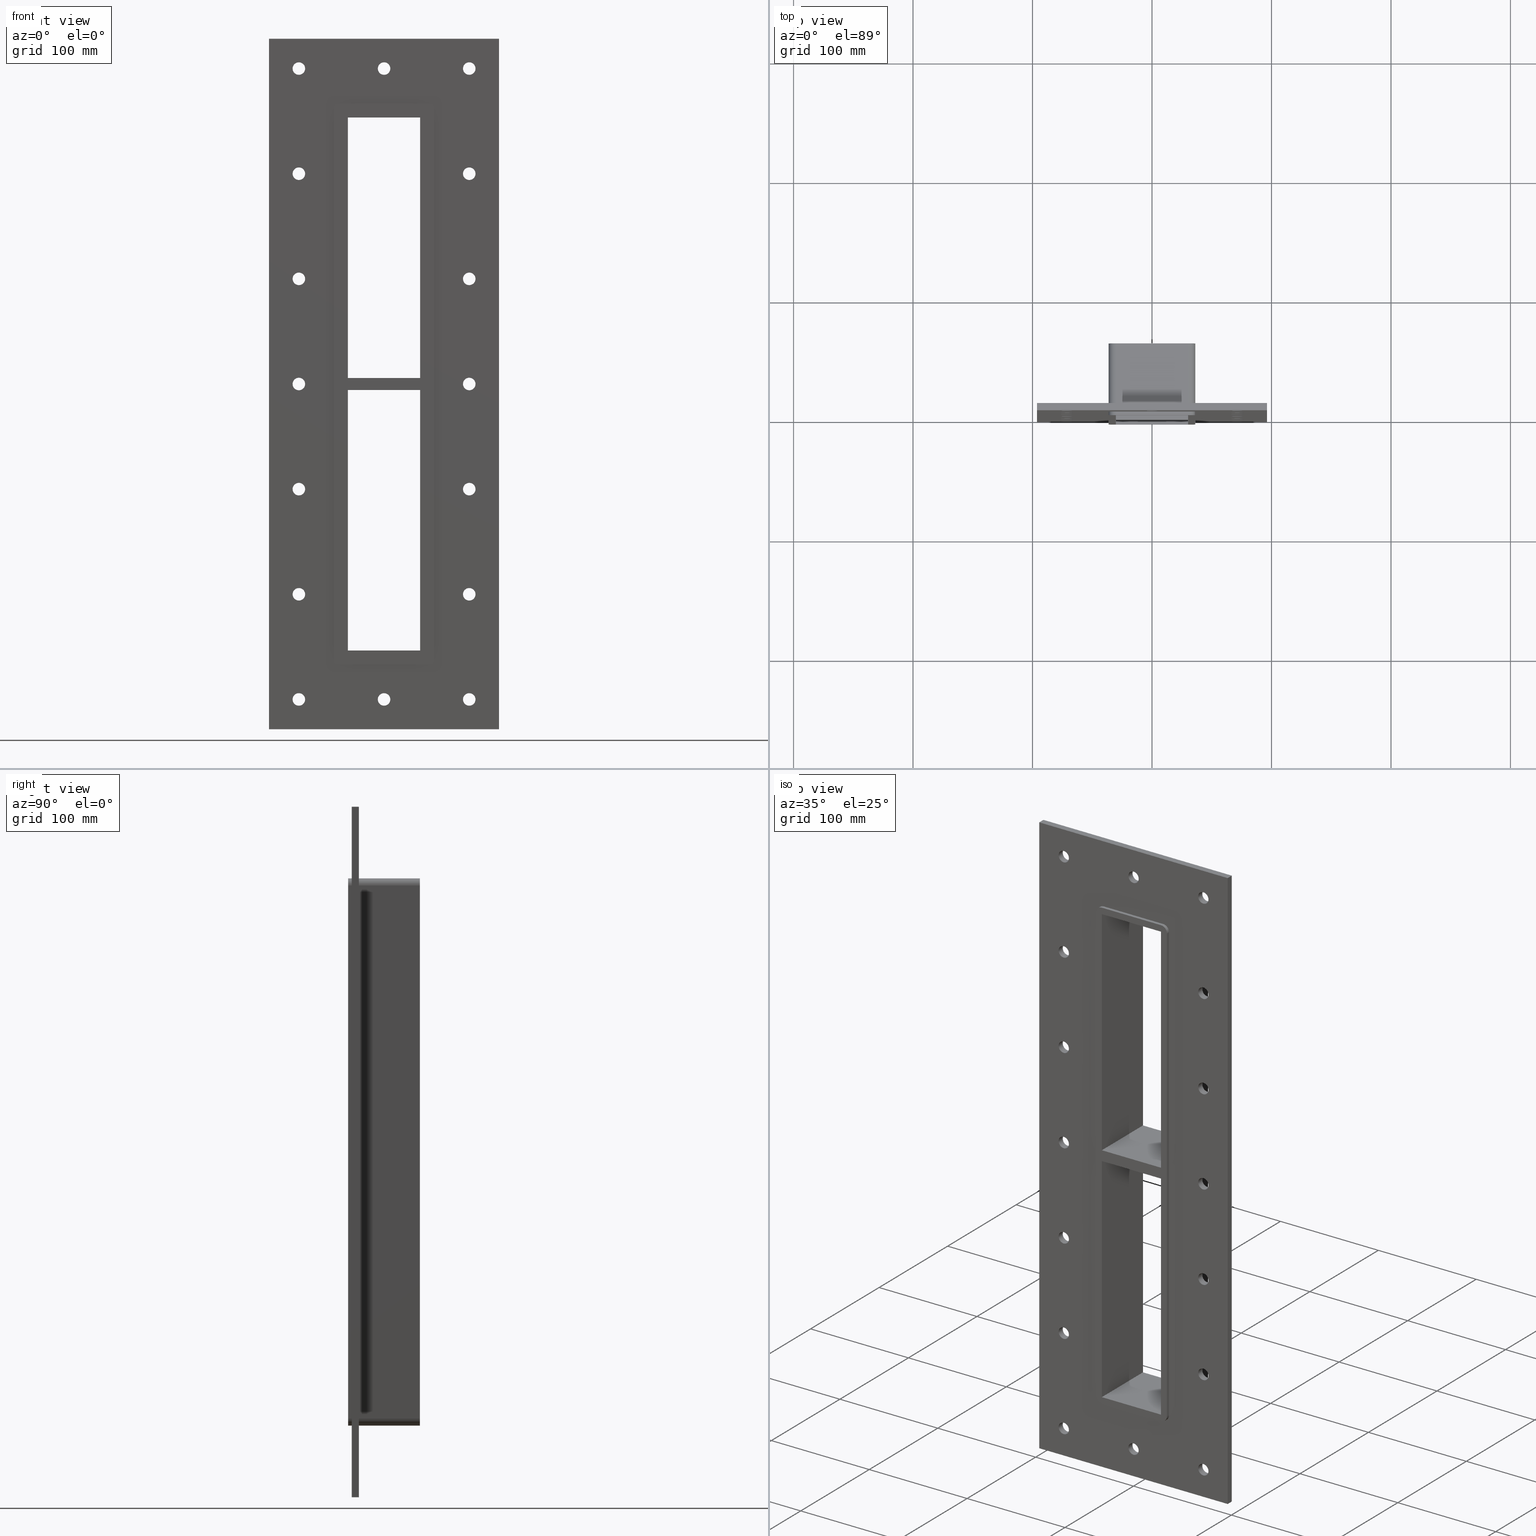
[diagram: canonical four-view strip — front | top / right | iso, engineering-drawing reading convention]
A machine part, canonical four-view strip (front | top / right | iso — engineering-drawing reading convention). The complete STEP part file that produces these views, byte-faithful:
ISO-10303-21;
HEADER;
/****************************************************************
 * Generated by software with PDElib inside                    *
 * PDElib Version v51a, created Wed 11/30/2011                  *
 * ITI Transcendata (http://www.transcendata.com/)              *
 ****************************************************************/
FILE_DESCRIPTION((''),'2;1');
FILE_NAME('N:\\Projects\\Ongoing_Projects\\12403 Transit Designer\\Product-data\\Product Data\\Transit designer Cad Generator\\CreatedFiles\\STEP\\GHM5+5X1.stp','2015-01-12T11:03:34',(''),(''),'Autodesk Inventor 2013','Autodesk Inventor 2013','');
FILE_SCHEMA(('AUTOMOTIVE_DESIGN { 1 0 10303 214 1 1 1 1 }'));
ENDSEC;
DATA;
#5=APPLICATION_CONTEXT('automotive design');
#6=APPLICATION_PROTOCOL_DEFINITION('International Standard','automotive_design',2001,#5);
#7=PRODUCT_CONTEXT('',#5,'mechanical');
#8=PRODUCT('GHM-ISO','GHM-ISO',$,(#7));
#9=PRODUCT_RELATED_PRODUCT_CATEGORY('part',$,(#8));
#10=PRODUCT_DEFINITION_FORMATION('',$,#8);
#11=PRODUCT_DEFINITION_CONTEXT('part definition',#5,'design');
#12=PRODUCT_DEFINITION('',$,#10,#11);
#18=(NAMED_UNIT(*)PLANE_ANGLE_UNIT()SI_UNIT($,.RADIAN.));
#19=DIMENSIONAL_EXPONENTS(0.0,0.0,0.0,0.0,0.0,0.0,0.0);
#20=PLANE_ANGLE_MEASURE_WITH_UNIT(PLANE_ANGLE_MEASURE(0.0174532925),#18);
#24=(CONVERSION_BASED_UNIT('DEGREE',#20)NAMED_UNIT(#19)PLANE_ANGLE_UNIT());
#28=(NAMED_UNIT(*)SI_UNIT($,.STERADIAN.)SOLID_ANGLE_UNIT());
#32=(LENGTH_UNIT()NAMED_UNIT(*)SI_UNIT(.MILLI.,.METRE.));
#34=UNCERTAINTY_MEASURE_WITH_UNIT(LENGTH_MEASURE(0.01),#32,'DISTANCE_ACCURACY_VALUE','');
#36=(GEOMETRIC_REPRESENTATION_CONTEXT(3)GLOBAL_UNCERTAINTY_ASSIGNED_CONTEXT((#34))GLOBAL_UNIT_ASSIGNED_CONTEXT((#24,#28,#32))REPRESENTATION_CONTEXT('None','None'));
#37=AXIS2_PLACEMENT_3D('',#38,#39,#40);
#38=CARTESIAN_POINT('',(0.0,0.0,0.0));
#39=DIRECTION('',(0.0,0.0,1.0));
#40=DIRECTION('',(1.0,0.0,0.0));
#41=SHAPE_REPRESENTATION('',(#37),#36);
#42=PRODUCT_DEFINITION_SHAPE('','',#12);
#43=SHAPE_DEFINITION_REPRESENTATION(#42,#41);
#49=(NAMED_UNIT(*)PLANE_ANGLE_UNIT()SI_UNIT($,.RADIAN.));
#50=DIMENSIONAL_EXPONENTS(0.0,0.0,0.0,0.0,0.0,0.0,0.0);
#51=PLANE_ANGLE_MEASURE_WITH_UNIT(PLANE_ANGLE_MEASURE(0.0174532925),#49);
#55=(CONVERSION_BASED_UNIT('DEGREE',#51)NAMED_UNIT(#50)PLANE_ANGLE_UNIT());
#59=(NAMED_UNIT(*)SI_UNIT($,.STERADIAN.)SOLID_ANGLE_UNIT());
#63=(LENGTH_UNIT()NAMED_UNIT(*)SI_UNIT(.MILLI.,.METRE.));
#65=UNCERTAINTY_MEASURE_WITH_UNIT(LENGTH_MEASURE(0.000001),#63,'DISTANCE_ACCURACY_VALUE','');
#67=(GEOMETRIC_REPRESENTATION_CONTEXT(3)GLOBAL_UNCERTAINTY_ASSIGNED_CONTEXT((#65))GLOBAL_UNIT_ASSIGNED_CONTEXT((#55,#59,#63))REPRESENTATION_CONTEXT('','3D'));
#68=CARTESIAN_POINT('',(-71.250000000000071,612.16031397012341,-263.99999999999994));
#69=DIRECTION('',(0.0,-1.0,0.0));
#70=DIRECTION('',(1.0,0.0,0.0));
#71=AXIS2_PLACEMENT_3D('',#68,#69,#70);
#72=CYLINDRICAL_SURFACE('',#71,5.25);
#73=CARTESIAN_POINT('',(-76.500000000000071,6.000000000000014,-263.99999999999994));
#74=VERTEX_POINT('',#73);
#75=CARTESIAN_POINT('',(-71.250000000000071,6.000000000000014,-263.99999999999994));
#76=DIRECTION('',(0.0,-1.0,0.0));
#77=DIRECTION('',(1.0,0.0,0.0));
#78=AXIS2_PLACEMENT_3D('',#75,#76,#77);
#79=CIRCLE('',#78,5.25);
#80=EDGE_CURVE('',#74,#74,#79,.T.);
#81=ORIENTED_EDGE('',*,*,#80,.F.);
#82=EDGE_LOOP('',(#81));
#83=FACE_OUTER_BOUND('',#82,.T.);
#84=CARTESIAN_POINT('',(-66.000000000000071,0.0,-263.99999999999994));
#85=VERTEX_POINT('',#84);
#86=CARTESIAN_POINT('',(-71.250000000000071,0.0,-263.99999999999994));
#87=DIRECTION('',(0.0,1.0,0.0));
#88=DIRECTION('',(1.0,0.0,0.0));
#89=AXIS2_PLACEMENT_3D('',#86,#87,#88);
#90=CIRCLE('',#89,5.25);
#91=EDGE_CURVE('',#85,#85,#90,.T.);
#92=ORIENTED_EDGE('',*,*,#91,.F.);
#93=EDGE_LOOP('',(#92));
#94=FACE_BOUND('',#93,.T.);
#95=ADVANCED_FACE('',(#83,#94),#72,.F.);
#96=CARTESIAN_POINT('',(71.349999999999923,612.16031397012341,-175.99999999999997));
#97=DIRECTION('',(0.0,-1.0,0.0));
#98=DIRECTION('',(1.0,0.0,0.0));
#99=AXIS2_PLACEMENT_3D('',#96,#97,#98);
#100=CYLINDRICAL_SURFACE('',#99,5.25);
#101=CARTESIAN_POINT('',(66.099999999999923,6.000000000000014,-175.99999999999997));
#102=VERTEX_POINT('',#101);
#103=CARTESIAN_POINT('',(71.349999999999923,6.000000000000014,-175.99999999999997));
#104=DIRECTION('',(0.0,-1.0,0.0));
#105=DIRECTION('',(1.0,0.0,0.0));
#106=AXIS2_PLACEMENT_3D('',#103,#104,#105);
#107=CIRCLE('',#106,5.25);
#108=EDGE_CURVE('',#102,#102,#107,.T.);
#109=ORIENTED_EDGE('',*,*,#108,.F.);
#110=EDGE_LOOP('',(#109));
#111=FACE_OUTER_BOUND('',#110,.T.);
#112=CARTESIAN_POINT('',(76.599999999999937,0.0,-175.99999999999997));
#113=VERTEX_POINT('',#112);
#114=CARTESIAN_POINT('',(71.349999999999923,0.0,-175.99999999999997));
#115=DIRECTION('',(0.0,1.0,0.0));
#116=DIRECTION('',(1.0,0.0,0.0));
#117=AXIS2_PLACEMENT_3D('',#114,#115,#116);
#118=CIRCLE('',#117,5.25);
#119=EDGE_CURVE('',#113,#113,#118,.T.);
#120=ORIENTED_EDGE('',*,*,#119,.F.);
#121=EDGE_LOOP('',(#120));
#122=FACE_BOUND('',#121,.T.);
#123=ADVANCED_FACE('',(#111,#122),#100,.F.);
#124=CARTESIAN_POINT('',(-71.250000000000071,612.16031397012341,-175.99999999999997));
#125=DIRECTION('',(0.0,-1.0,0.0));
#126=DIRECTION('',(1.0,0.0,0.0));
#127=AXIS2_PLACEMENT_3D('',#124,#125,#126);
#128=CYLINDRICAL_SURFACE('',#127,5.25);
#129=CARTESIAN_POINT('',(-76.500000000000071,6.000000000000014,-175.99999999999997));
#130=VERTEX_POINT('',#129);
#131=CARTESIAN_POINT('',(-71.250000000000071,6.000000000000014,-175.99999999999997));
#132=DIRECTION('',(0.0,-1.0,0.0));
#133=DIRECTION('',(1.0,0.0,0.0));
#134=AXIS2_PLACEMENT_3D('',#131,#132,#133);
#135=CIRCLE('',#134,5.25);
#136=EDGE_CURVE('',#130,#130,#135,.T.);
#137=ORIENTED_EDGE('',*,*,#136,.F.);
#138=EDGE_LOOP('',(#137));
#139=FACE_OUTER_BOUND('',#138,.T.);
#140=CARTESIAN_POINT('',(-66.000000000000071,0.0,-175.99999999999997));
#141=VERTEX_POINT('',#140);
#142=CARTESIAN_POINT('',(-71.250000000000071,0.0,-175.99999999999997));
#143=DIRECTION('',(0.0,1.0,0.0));
#144=DIRECTION('',(1.0,0.0,0.0));
#145=AXIS2_PLACEMENT_3D('',#142,#143,#144);
#146=CIRCLE('',#145,5.25);
#147=EDGE_CURVE('',#141,#141,#146,.T.);
#148=ORIENTED_EDGE('',*,*,#147,.F.);
#149=EDGE_LOOP('',(#148));
#150=FACE_BOUND('',#149,.T.);
#151=ADVANCED_FACE('',(#139,#150),#128,.F.);
#152=CARTESIAN_POINT('',(71.349999999999923,612.16031397012341,-87.999999999999972));
#153=DIRECTION('',(0.0,-1.0,0.0));
#154=DIRECTION('',(1.0,0.0,0.0));
#155=AXIS2_PLACEMENT_3D('',#152,#153,#154);
#156=CYLINDRICAL_SURFACE('',#155,5.25);
#157=CARTESIAN_POINT('',(66.099999999999923,6.000000000000014,-87.999999999999972));
#158=VERTEX_POINT('',#157);
#159=CARTESIAN_POINT('',(71.349999999999923,6.000000000000014,-87.999999999999972));
#160=DIRECTION('',(0.0,-1.0,0.0));
#161=DIRECTION('',(1.0,0.0,0.0));
#162=AXIS2_PLACEMENT_3D('',#159,#160,#161);
#163=CIRCLE('',#162,5.25);
#164=EDGE_CURVE('',#158,#158,#163,.T.);
#165=ORIENTED_EDGE('',*,*,#164,.F.);
#166=EDGE_LOOP('',(#165));
#167=FACE_OUTER_BOUND('',#166,.T.);
#168=CARTESIAN_POINT('',(76.599999999999937,0.0,-87.999999999999972));
#169=VERTEX_POINT('',#168);
#170=CARTESIAN_POINT('',(71.349999999999923,0.0,-87.999999999999972));
#171=DIRECTION('',(0.0,1.0,0.0));
#172=DIRECTION('',(1.0,0.0,0.0));
#173=AXIS2_PLACEMENT_3D('',#170,#171,#172);
#174=CIRCLE('',#173,5.25);
#175=EDGE_CURVE('',#169,#169,#174,.T.);
#176=ORIENTED_EDGE('',*,*,#175,.F.);
#177=EDGE_LOOP('',(#176));
#178=FACE_BOUND('',#177,.T.);
#179=ADVANCED_FACE('',(#167,#178),#156,.F.);
#180=CARTESIAN_POINT('',(-71.250000000000071,612.16031397012341,-87.999999999999972));
#181=DIRECTION('',(0.0,-1.0,0.0));
#182=DIRECTION('',(1.0,0.0,0.0));
#183=AXIS2_PLACEMENT_3D('',#180,#181,#182);
#184=CYLINDRICAL_SURFACE('',#183,5.25);
#185=CARTESIAN_POINT('',(-76.500000000000071,6.000000000000014,-87.999999999999972));
#186=VERTEX_POINT('',#185);
#187=CARTESIAN_POINT('',(-71.250000000000071,6.000000000000014,-87.999999999999972));
#188=DIRECTION('',(0.0,-1.0,0.0));
#189=DIRECTION('',(1.0,0.0,0.0));
#190=AXIS2_PLACEMENT_3D('',#187,#188,#189);
#191=CIRCLE('',#190,5.25);
#192=EDGE_CURVE('',#186,#186,#191,.T.);
#193=ORIENTED_EDGE('',*,*,#192,.F.);
#194=EDGE_LOOP('',(#193));
#195=FACE_OUTER_BOUND('',#194,.T.);
#196=CARTESIAN_POINT('',(-66.000000000000071,0.0,-87.999999999999972));
#197=VERTEX_POINT('',#196);
#198=CARTESIAN_POINT('',(-71.250000000000071,0.0,-87.999999999999972));
#199=DIRECTION('',(0.0,1.0,0.0));
#200=DIRECTION('',(1.0,0.0,0.0));
#201=AXIS2_PLACEMENT_3D('',#198,#199,#200);
#202=CIRCLE('',#201,5.25);
#203=EDGE_CURVE('',#197,#197,#202,.T.);
#204=ORIENTED_EDGE('',*,*,#203,.F.);
#205=EDGE_LOOP('',(#204));
#206=FACE_BOUND('',#205,.T.);
#207=ADVANCED_FACE('',(#195,#206),#184,.F.);
#208=CARTESIAN_POINT('',(71.349999999999923,612.16031397012341,3.552714E-014));
#209=DIRECTION('',(0.0,-1.0,0.0));
#210=DIRECTION('',(1.0,0.0,0.0));
#211=AXIS2_PLACEMENT_3D('',#208,#209,#210);
#212=CYLINDRICAL_SURFACE('',#211,5.25);
#213=CARTESIAN_POINT('',(66.099999999999923,6.000000000000014,3.552714E-014));
#214=VERTEX_POINT('',#213);
#215=CARTESIAN_POINT('',(71.349999999999923,6.000000000000014,3.552714E-014));
#216=DIRECTION('',(0.0,-1.0,0.0));
#217=DIRECTION('',(1.0,0.0,0.0));
#218=AXIS2_PLACEMENT_3D('',#215,#216,#217);
#219=CIRCLE('',#218,5.25);
#220=EDGE_CURVE('',#214,#214,#219,.T.);
#221=ORIENTED_EDGE('',*,*,#220,.F.);
#222=EDGE_LOOP('',(#221));
#223=FACE_OUTER_BOUND('',#222,.T.);
#224=CARTESIAN_POINT('',(76.599999999999937,0.0,3.552714E-014));
#225=VERTEX_POINT('',#224);
#226=CARTESIAN_POINT('',(71.349999999999923,0.0,3.552714E-014));
#227=DIRECTION('',(0.0,1.0,0.0));
#228=DIRECTION('',(1.0,0.0,0.0));
#229=AXIS2_PLACEMENT_3D('',#226,#227,#228);
#230=CIRCLE('',#229,5.25);
#231=EDGE_CURVE('',#225,#225,#230,.T.);
#232=ORIENTED_EDGE('',*,*,#231,.F.);
#233=EDGE_LOOP('',(#232));
#234=FACE_BOUND('',#233,.T.);
#235=ADVANCED_FACE('',(#223,#234),#212,.F.);
#236=CARTESIAN_POINT('',(-71.250000000000071,612.16031397012341,3.552714E-014));
#237=DIRECTION('',(0.0,-1.0,0.0));
#238=DIRECTION('',(1.0,0.0,0.0));
#239=AXIS2_PLACEMENT_3D('',#236,#237,#238);
#240=CYLINDRICAL_SURFACE('',#239,5.25);
#241=CARTESIAN_POINT('',(-76.500000000000071,6.000000000000014,3.552714E-014));
#242=VERTEX_POINT('',#241);
#243=CARTESIAN_POINT('',(-71.250000000000071,6.000000000000014,3.552714E-014));
#244=DIRECTION('',(0.0,-1.0,0.0));
#245=DIRECTION('',(1.0,0.0,0.0));
#246=AXIS2_PLACEMENT_3D('',#243,#244,#245);
#247=CIRCLE('',#246,5.25);
#248=EDGE_CURVE('',#242,#242,#247,.T.);
#249=ORIENTED_EDGE('',*,*,#248,.F.);
#250=EDGE_LOOP('',(#249));
#251=FACE_OUTER_BOUND('',#250,.T.);
#252=CARTESIAN_POINT('',(-66.000000000000071,0.0,3.552714E-014));
#253=VERTEX_POINT('',#252);
#254=CARTESIAN_POINT('',(-71.250000000000071,0.0,3.552714E-014));
#255=DIRECTION('',(0.0,1.0,0.0));
#256=DIRECTION('',(1.0,0.0,0.0));
#257=AXIS2_PLACEMENT_3D('',#254,#255,#256);
#258=CIRCLE('',#257,5.25);
#259=EDGE_CURVE('',#253,#253,#258,.T.);
#260=ORIENTED_EDGE('',*,*,#259,.F.);
#261=EDGE_LOOP('',(#260));
#262=FACE_BOUND('',#261,.T.);
#263=ADVANCED_FACE('',(#251,#262),#240,.F.);
#264=CARTESIAN_POINT('',(71.349999999999923,612.16031397012341,88.000000000000043));
#265=DIRECTION('',(0.0,-1.0,0.0));
#266=DIRECTION('',(1.0,0.0,0.0));
#267=AXIS2_PLACEMENT_3D('',#264,#265,#266);
#268=CYLINDRICAL_SURFACE('',#267,5.25);
#269=CARTESIAN_POINT('',(66.099999999999923,6.000000000000014,88.000000000000043));
#270=VERTEX_POINT('',#269);
#271=CARTESIAN_POINT('',(71.349999999999923,6.000000000000014,88.000000000000043));
#272=DIRECTION('',(0.0,-1.0,0.0));
#273=DIRECTION('',(1.0,0.0,0.0));
#274=AXIS2_PLACEMENT_3D('',#271,#272,#273);
#275=CIRCLE('',#274,5.25);
#276=EDGE_CURVE('',#270,#270,#275,.T.);
#277=ORIENTED_EDGE('',*,*,#276,.F.);
#278=EDGE_LOOP('',(#277));
#279=FACE_OUTER_BOUND('',#278,.T.);
#280=CARTESIAN_POINT('',(76.599999999999937,0.0,88.000000000000043));
#281=VERTEX_POINT('',#280);
#282=CARTESIAN_POINT('',(71.349999999999923,0.0,88.000000000000043));
#283=DIRECTION('',(0.0,1.0,0.0));
#284=DIRECTION('',(1.0,0.0,0.0));
#285=AXIS2_PLACEMENT_3D('',#282,#283,#284);
#286=CIRCLE('',#285,5.25);
#287=EDGE_CURVE('',#281,#281,#286,.T.);
#288=ORIENTED_EDGE('',*,*,#287,.F.);
#289=EDGE_LOOP('',(#288));
#290=FACE_BOUND('',#289,.T.);
#291=ADVANCED_FACE('',(#279,#290),#268,.F.);
#292=CARTESIAN_POINT('',(-71.250000000000071,612.16031397012341,88.000000000000043));
#293=DIRECTION('',(0.0,-1.0,0.0));
#294=DIRECTION('',(1.0,0.0,0.0));
#295=AXIS2_PLACEMENT_3D('',#292,#293,#294);
#296=CYLINDRICAL_SURFACE('',#295,5.25);
#297=CARTESIAN_POINT('',(-76.500000000000071,6.000000000000014,88.000000000000043));
#298=VERTEX_POINT('',#297);
#299=CARTESIAN_POINT('',(-71.250000000000071,6.000000000000014,88.000000000000043));
#300=DIRECTION('',(0.0,-1.0,0.0));
#301=DIRECTION('',(1.0,0.0,0.0));
#302=AXIS2_PLACEMENT_3D('',#299,#300,#301);
#303=CIRCLE('',#302,5.25);
#304=EDGE_CURVE('',#298,#298,#303,.T.);
#305=ORIENTED_EDGE('',*,*,#304,.F.);
#306=EDGE_LOOP('',(#305));
#307=FACE_OUTER_BOUND('',#306,.T.);
#308=CARTESIAN_POINT('',(-66.000000000000071,0.0,88.000000000000043));
#309=VERTEX_POINT('',#308);
#310=CARTESIAN_POINT('',(-71.250000000000071,0.0,88.000000000000043));
#311=DIRECTION('',(0.0,1.0,0.0));
#312=DIRECTION('',(1.0,0.0,0.0));
#313=AXIS2_PLACEMENT_3D('',#310,#311,#312);
#314=CIRCLE('',#313,5.25);
#315=EDGE_CURVE('',#309,#309,#314,.T.);
#316=ORIENTED_EDGE('',*,*,#315,.F.);
#317=EDGE_LOOP('',(#316));
#318=FACE_BOUND('',#317,.T.);
#319=ADVANCED_FACE('',(#307,#318),#296,.F.);
#320=CARTESIAN_POINT('',(71.349999999999923,612.16031397012341,176.00000000000006));
#321=DIRECTION('',(0.0,-1.0,0.0));
#322=DIRECTION('',(1.0,0.0,0.0));
#323=AXIS2_PLACEMENT_3D('',#320,#321,#322);
#324=CYLINDRICAL_SURFACE('',#323,5.25);
#325=CARTESIAN_POINT('',(66.099999999999923,6.000000000000014,176.00000000000006));
#326=VERTEX_POINT('',#325);
#327=CARTESIAN_POINT('',(71.349999999999923,6.000000000000014,176.00000000000006));
#328=DIRECTION('',(0.0,-1.0,0.0));
#329=DIRECTION('',(1.0,0.0,0.0));
#330=AXIS2_PLACEMENT_3D('',#327,#328,#329);
#331=CIRCLE('',#330,5.25);
#332=EDGE_CURVE('',#326,#326,#331,.T.);
#333=ORIENTED_EDGE('',*,*,#332,.F.);
#334=EDGE_LOOP('',(#333));
#335=FACE_OUTER_BOUND('',#334,.T.);
#336=CARTESIAN_POINT('',(76.599999999999937,0.0,176.00000000000006));
#337=VERTEX_POINT('',#336);
#338=CARTESIAN_POINT('',(71.349999999999923,0.0,176.00000000000006));
#339=DIRECTION('',(0.0,1.0,0.0));
#340=DIRECTION('',(1.0,0.0,0.0));
#341=AXIS2_PLACEMENT_3D('',#338,#339,#340);
#342=CIRCLE('',#341,5.25);
#343=EDGE_CURVE('',#337,#337,#342,.T.);
#344=ORIENTED_EDGE('',*,*,#343,.F.);
#345=EDGE_LOOP('',(#344));
#346=FACE_BOUND('',#345,.T.);
#347=ADVANCED_FACE('',(#335,#346),#324,.F.);
#348=CARTESIAN_POINT('',(-71.250000000000071,612.16031397012341,176.00000000000006));
#349=DIRECTION('',(0.0,-1.0,0.0));
#350=DIRECTION('',(1.0,0.0,0.0));
#351=AXIS2_PLACEMENT_3D('',#348,#349,#350);
#352=CYLINDRICAL_SURFACE('',#351,5.25);
#353=CARTESIAN_POINT('',(-76.500000000000071,6.000000000000014,176.00000000000006));
#354=VERTEX_POINT('',#353);
#355=CARTESIAN_POINT('',(-71.250000000000071,6.000000000000014,176.00000000000006));
#356=DIRECTION('',(0.0,-1.0,0.0));
#357=DIRECTION('',(1.0,0.0,0.0));
#358=AXIS2_PLACEMENT_3D('',#355,#356,#357);
#359=CIRCLE('',#358,5.25);
#360=EDGE_CURVE('',#354,#354,#359,.T.);
#361=ORIENTED_EDGE('',*,*,#360,.F.);
#362=EDGE_LOOP('',(#361));
#363=FACE_OUTER_BOUND('',#362,.T.);
#364=CARTESIAN_POINT('',(-66.000000000000071,0.0,176.00000000000006));
#365=VERTEX_POINT('',#364);
#366=CARTESIAN_POINT('',(-71.250000000000071,0.0,176.00000000000006));
#367=DIRECTION('',(0.0,1.0,0.0));
#368=DIRECTION('',(1.0,0.0,0.0));
#369=AXIS2_PLACEMENT_3D('',#366,#367,#368);
#370=CIRCLE('',#369,5.25);
#371=EDGE_CURVE('',#365,#365,#370,.T.);
#372=ORIENTED_EDGE('',*,*,#371,.F.);
#373=EDGE_LOOP('',(#372));
#374=FACE_BOUND('',#373,.T.);
#375=ADVANCED_FACE('',(#363,#374),#352,.F.);
#376=CARTESIAN_POINT('',(0.049999999999928,612.16031397012341,264.00000000000006));
#377=DIRECTION('',(0.0,-1.0,0.0));
#378=DIRECTION('',(1.0,0.0,0.0));
#379=AXIS2_PLACEMENT_3D('',#376,#377,#378);
#380=CYLINDRICAL_SURFACE('',#379,5.25);
#381=CARTESIAN_POINT('',(-5.200000000000076,6.000000000000014,264.00000000000006));
#382=VERTEX_POINT('',#381);
#383=CARTESIAN_POINT('',(0.049999999999928,6.000000000000014,264.00000000000006));
#384=DIRECTION('',(0.0,-1.0,0.0));
#385=DIRECTION('',(1.0,0.0,0.0));
#386=AXIS2_PLACEMENT_3D('',#383,#384,#385);
#387=CIRCLE('',#386,5.25);
#388=EDGE_CURVE('',#382,#382,#387,.T.);
#389=ORIENTED_EDGE('',*,*,#388,.F.);
#390=EDGE_LOOP('',(#389));
#391=FACE_OUTER_BOUND('',#390,.T.);
#392=CARTESIAN_POINT('',(5.299999999999931,0.0,264.00000000000006));
#393=VERTEX_POINT('',#392);
#394=CARTESIAN_POINT('',(0.049999999999928,0.0,264.00000000000006));
#395=DIRECTION('',(0.0,1.0,0.0));
#396=DIRECTION('',(1.0,0.0,0.0));
#397=AXIS2_PLACEMENT_3D('',#394,#395,#396);
#398=CIRCLE('',#397,5.25);
#399=EDGE_CURVE('',#393,#393,#398,.T.);
#400=ORIENTED_EDGE('',*,*,#399,.F.);
#401=EDGE_LOOP('',(#400));
#402=FACE_BOUND('',#401,.T.);
#403=ADVANCED_FACE('',(#391,#402),#380,.F.);
#404=CARTESIAN_POINT('',(0.049999999999928,612.16031397012341,-264.0));
#405=DIRECTION('',(0.0,-1.0,0.0));
#406=DIRECTION('',(1.0,0.0,0.0));
#407=AXIS2_PLACEMENT_3D('',#404,#405,#406);
#408=CYLINDRICAL_SURFACE('',#407,5.25);
#409=CARTESIAN_POINT('',(-5.200000000000076,6.000000000000014,-264.0));
#410=VERTEX_POINT('',#409);
#411=CARTESIAN_POINT('',(0.049999999999928,6.000000000000014,-264.0));
#412=DIRECTION('',(0.0,-1.0,0.0));
#413=DIRECTION('',(1.0,0.0,0.0));
#414=AXIS2_PLACEMENT_3D('',#411,#412,#413);
#415=CIRCLE('',#414,5.25);
#416=EDGE_CURVE('',#410,#410,#415,.T.);
#417=ORIENTED_EDGE('',*,*,#416,.F.);
#418=EDGE_LOOP('',(#417));
#419=FACE_OUTER_BOUND('',#418,.T.);
#420=CARTESIAN_POINT('',(5.299999999999931,0.0,-264.0));
#421=VERTEX_POINT('',#420);
#422=CARTESIAN_POINT('',(0.049999999999928,0.0,-264.0));
#423=DIRECTION('',(0.0,1.0,0.0));
#424=DIRECTION('',(1.0,0.0,0.0));
#425=AXIS2_PLACEMENT_3D('',#422,#423,#424);
#426=CIRCLE('',#425,5.25);
#427=EDGE_CURVE('',#421,#421,#426,.T.);
#428=ORIENTED_EDGE('',*,*,#427,.F.);
#429=EDGE_LOOP('',(#428));
#430=FACE_BOUND('',#429,.T.);
#431=ADVANCED_FACE('',(#419,#430),#408,.F.);
#432=CARTESIAN_POINT('',(71.349999999999923,612.16031397012341,-264.0));
#433=DIRECTION('',(0.0,-1.0,0.0));
#434=DIRECTION('',(1.0,0.0,0.0));
#435=AXIS2_PLACEMENT_3D('',#432,#433,#434);
#436=CYLINDRICAL_SURFACE('',#435,5.25);
#437=CARTESIAN_POINT('',(66.099999999999923,6.000000000000014,-264.0));
#438=VERTEX_POINT('',#437);
#439=CARTESIAN_POINT('',(71.349999999999923,6.000000000000014,-264.0));
#440=DIRECTION('',(0.0,-1.0,0.0));
#441=DIRECTION('',(1.0,0.0,0.0));
#442=AXIS2_PLACEMENT_3D('',#439,#440,#441);
#443=CIRCLE('',#442,5.25);
#444=EDGE_CURVE('',#438,#438,#443,.T.);
#445=ORIENTED_EDGE('',*,*,#444,.F.);
#446=EDGE_LOOP('',(#445));
#447=FACE_OUTER_BOUND('',#446,.T.);
#448=CARTESIAN_POINT('',(76.599999999999937,0.0,-264.0));
#449=VERTEX_POINT('',#448);
#450=CARTESIAN_POINT('',(71.349999999999923,0.0,-264.0));
#451=DIRECTION('',(0.0,1.0,0.0));
#452=DIRECTION('',(1.0,0.0,0.0));
#453=AXIS2_PLACEMENT_3D('',#450,#451,#452);
#454=CIRCLE('',#453,5.25);
#455=EDGE_CURVE('',#449,#449,#454,.T.);
#456=ORIENTED_EDGE('',*,*,#455,.F.);
#457=EDGE_LOOP('',(#456));
#458=FACE_BOUND('',#457,.T.);
#459=ADVANCED_FACE('',(#447,#458),#436,.F.);
#460=CARTESIAN_POINT('',(-71.250000000000071,612.16031397012341,264.00000000000006));
#461=DIRECTION('',(0.0,-1.0,0.0));
#462=DIRECTION('',(1.0,0.0,0.0));
#463=AXIS2_PLACEMENT_3D('',#460,#461,#462);
#464=CYLINDRICAL_SURFACE('',#463,5.25);
#465=CARTESIAN_POINT('',(-76.500000000000071,6.000000000000014,264.00000000000006));
#466=VERTEX_POINT('',#465);
#467=CARTESIAN_POINT('',(-71.250000000000071,6.000000000000014,264.00000000000006));
#468=DIRECTION('',(0.0,-1.0,0.0));
#469=DIRECTION('',(1.0,0.0,0.0));
#470=AXIS2_PLACEMENT_3D('',#467,#468,#469);
#471=CIRCLE('',#470,5.25);
#472=EDGE_CURVE('',#466,#466,#471,.T.);
#473=ORIENTED_EDGE('',*,*,#472,.F.);
#474=EDGE_LOOP('',(#473));
#475=FACE_OUTER_BOUND('',#474,.T.);
#476=CARTESIAN_POINT('',(-66.000000000000071,0.0,264.00000000000006));
#477=VERTEX_POINT('',#476);
#478=CARTESIAN_POINT('',(-71.250000000000071,0.0,264.00000000000006));
#479=DIRECTION('',(0.0,1.0,0.0));
#480=DIRECTION('',(1.0,0.0,0.0));
#481=AXIS2_PLACEMENT_3D('',#478,#479,#480);
#482=CIRCLE('',#481,5.25);
#483=EDGE_CURVE('',#477,#477,#482,.T.);
#484=ORIENTED_EDGE('',*,*,#483,.F.);
#485=EDGE_LOOP('',(#484));
#486=FACE_BOUND('',#485,.T.);
#487=ADVANCED_FACE('',(#475,#486),#464,.F.);
#488=CARTESIAN_POINT('',(71.349999999999923,612.16031397012341,264.00000000000006));
#489=DIRECTION('',(0.0,-1.0,0.0));
#490=DIRECTION('',(1.0,0.0,0.0));
#491=AXIS2_PLACEMENT_3D('',#488,#489,#490);
#492=CYLINDRICAL_SURFACE('',#491,5.25);
#493=CARTESIAN_POINT('',(66.099999999999923,6.000000000000014,264.00000000000006));
#494=VERTEX_POINT('',#493);
#495=CARTESIAN_POINT('',(71.349999999999923,6.000000000000014,264.00000000000006));
#496=DIRECTION('',(0.0,-1.0,0.0));
#497=DIRECTION('',(1.0,0.0,0.0));
#498=AXIS2_PLACEMENT_3D('',#495,#496,#497);
#499=CIRCLE('',#498,5.25);
#500=EDGE_CURVE('',#494,#494,#499,.T.);
#501=ORIENTED_EDGE('',*,*,#500,.F.);
#502=EDGE_LOOP('',(#501));
#503=FACE_OUTER_BOUND('',#502,.T.);
#504=CARTESIAN_POINT('',(76.599999999999937,0.0,264.00000000000006));
#505=VERTEX_POINT('',#504);
#506=CARTESIAN_POINT('',(71.349999999999923,0.0,264.00000000000006));
#507=DIRECTION('',(0.0,1.0,0.0));
#508=DIRECTION('',(1.0,0.0,0.0));
#509=AXIS2_PLACEMENT_3D('',#506,#507,#508);
#510=CIRCLE('',#509,5.25);
#511=EDGE_CURVE('',#505,#505,#510,.T.);
#512=ORIENTED_EDGE('',*,*,#511,.F.);
#513=EDGE_LOOP('',(#512));
#514=FACE_BOUND('',#513,.T.);
#515=ADVANCED_FACE('',(#503,#514),#492,.F.);
#516=CARTESIAN_POINT('',(30.249999999996362,-3.0,-5.000000000011404));
#517=DIRECTION('',(0.0,0.0,-1.0));
#518=DIRECTION('',(-1.0,0.0,0.0));
#519=AXIS2_PLACEMENT_3D('',#516,#517,#518);
#520=PLANE('',#519);
#521=CARTESIAN_POINT('',(30.249999999996362,-3.0,-5.000000000011404));
#522=VERTEX_POINT('',#521);
#523=CARTESIAN_POINT('',(-30.249999999999734,-3.0,-5.000000000011369));
#524=VERTEX_POINT('',#523);
#525=CARTESIAN_POINT('',(30.249999999996362,-3.0,-5.000000000011404));
#526=DIRECTION('',(-1.0,0.0,0.0));
#527=VECTOR('',#526,60.499999999996099);
#528=LINE('',#525,#527);
#529=EDGE_CURVE('',#522,#524,#528,.T.);
#530=ORIENTED_EDGE('',*,*,#529,.T.);
#531=CARTESIAN_POINT('',(-30.249999999999734,57.0,-5.000000000011369));
#532=VERTEX_POINT('',#531);
#533=CARTESIAN_POINT('',(-30.250000000000004,57.000000000000007,-5.000000000011369));
#534=DIRECTION('',(0.0,-1.0,0.0));
#535=VECTOR('',#534,60.000000000000007);
#536=LINE('',#533,#535);
#537=EDGE_CURVE('',#532,#524,#536,.T.);
#538=ORIENTED_EDGE('',*,*,#537,.F.);
#539=CARTESIAN_POINT('',(30.249999999996366,57.0,-5.000000000011404));
#540=VERTEX_POINT('',#539);
#541=CARTESIAN_POINT('',(30.249999999996362,57.0,-5.000000000011404));
#542=DIRECTION('',(-1.0,0.0,0.0));
#543=VECTOR('',#542,60.499999999996099);
#544=LINE('',#541,#543);
#545=EDGE_CURVE('',#540,#532,#544,.T.);
#546=ORIENTED_EDGE('',*,*,#545,.F.);
#547=CARTESIAN_POINT('',(30.25,-3.0,-5.000000000011404));
#548=DIRECTION('',(0.0,1.0,0.0));
#549=VECTOR('',#548,60.000000000000007);
#550=LINE('',#547,#549);
#551=EDGE_CURVE('',#522,#540,#550,.T.);
#552=ORIENTED_EDGE('',*,*,#551,.F.);
#553=EDGE_LOOP('',(#530,#538,#546,#552));
#554=FACE_OUTER_BOUND('',#553,.T.);
#555=ADVANCED_FACE('',(#554),#520,.T.);
#556=CARTESIAN_POINT('',(-30.249999999999734,-3.0,5.0));
#557=DIRECTION('',(0.0,0.0,1.0));
#558=DIRECTION('',(1.0,0.0,0.0));
#559=AXIS2_PLACEMENT_3D('',#556,#557,#558);
#560=PLANE('',#559);
#561=CARTESIAN_POINT('',(-30.249999999999734,-3.0,5.0));
#562=VERTEX_POINT('',#561);
#563=CARTESIAN_POINT('',(30.249999999999908,-3.0,5.0));
#564=VERTEX_POINT('',#563);
#565=CARTESIAN_POINT('',(-30.249999999999734,-3.0,5.0));
#566=DIRECTION('',(1.0,0.0,0.0));
#567=VECTOR('',#566,60.499999999999631);
#568=LINE('',#565,#567);
#569=EDGE_CURVE('',#562,#564,#568,.T.);
#570=ORIENTED_EDGE('',*,*,#569,.T.);
#571=CARTESIAN_POINT('',(30.249999999999901,57.0,5.0));
#572=VERTEX_POINT('',#571);
#573=CARTESIAN_POINT('',(30.25,57.000000000000007,5.0));
#574=DIRECTION('',(0.0,-1.0,0.0));
#575=VECTOR('',#574,60.000000000000007);
#576=LINE('',#573,#575);
#577=EDGE_CURVE('',#572,#564,#576,.T.);
#578=ORIENTED_EDGE('',*,*,#577,.F.);
#579=CARTESIAN_POINT('',(-30.249999999999734,57.0,5.0));
#580=VERTEX_POINT('',#579);
#581=CARTESIAN_POINT('',(-30.249999999999734,57.0,5.0));
#582=DIRECTION('',(1.0,0.0,0.0));
#583=VECTOR('',#582,60.499999999999631);
#584=LINE('',#581,#583);
#585=EDGE_CURVE('',#580,#572,#584,.T.);
#586=ORIENTED_EDGE('',*,*,#585,.F.);
#587=CARTESIAN_POINT('',(-30.250000000000004,-3.0,5.0));
#588=DIRECTION('',(0.0,1.0,0.0));
#589=VECTOR('',#588,60.000000000000007);
#590=LINE('',#587,#589);
#591=EDGE_CURVE('',#562,#580,#590,.T.);
#592=ORIENTED_EDGE('',*,*,#591,.F.);
#593=EDGE_LOOP('',(#570,#578,#586,#592));
#594=FACE_OUTER_BOUND('',#593,.T.);
#595=ADVANCED_FACE('',(#594),#560,.T.);
#596=CARTESIAN_POINT('',(-30.250000000000004,0.0,-223.00000000000006));
#597=DIRECTION('',(-1.0,0.0,0.0));
#598=DIRECTION('',(0.0,0.0,1.0));
#599=AXIS2_PLACEMENT_3D('',#596,#597,#598);
#600=PLANE('',#599);
#601=ORIENTED_EDGE('',*,*,#591,.T.);
#602=CARTESIAN_POINT('',(-30.250000000000007,57.0,223.00000000000006));
#603=VERTEX_POINT('',#602);
#604=CARTESIAN_POINT('',(-30.250000000000004,57.0,222.99999999999997));
#605=DIRECTION('',(0.0,0.0,-1.0));
#606=VECTOR('',#605,217.99999999999997);
#607=LINE('',#604,#606);
#608=EDGE_CURVE('',#603,#580,#607,.T.);
#609=ORIENTED_EDGE('',*,*,#608,.F.);
#610=CARTESIAN_POINT('',(-30.250000000000007,-3.0,223.00000000000006));
#611=VERTEX_POINT('',#610);
#612=CARTESIAN_POINT('',(-30.250000000000004,-3.0,223.00000000000006));
#613=DIRECTION('',(0.0,1.0,0.0));
#614=VECTOR('',#613,60.0);
#615=LINE('',#612,#614);
#616=EDGE_CURVE('',#611,#603,#615,.T.);
#617=ORIENTED_EDGE('',*,*,#616,.F.);
#618=CARTESIAN_POINT('',(-30.250000000000004,-3.0,5.0));
#619=DIRECTION('',(0.0,0.0,1.0));
#620=VECTOR('',#619,217.99999999999997);
#621=LINE('',#618,#620);
#622=EDGE_CURVE('',#562,#611,#621,.T.);
#623=ORIENTED_EDGE('',*,*,#622,.F.);
#624=EDGE_LOOP('',(#601,#609,#617,#623));
#625=FACE_OUTER_BOUND('',#624,.T.);
#626=ADVANCED_FACE('',(#625),#600,.F.);
#627=CARTESIAN_POINT('',(30.25,0.0,223.00000000000006));
#628=DIRECTION('',(1.0,0.0,0.0));
#629=DIRECTION('',(0.0,0.0,-1.0));
#630=AXIS2_PLACEMENT_3D('',#627,#628,#629);
#631=PLANE('',#630);
#632=ORIENTED_EDGE('',*,*,#551,.T.);
#633=CARTESIAN_POINT('',(30.25,57.0,-223.00000000000006));
#634=VERTEX_POINT('',#633);
#635=CARTESIAN_POINT('',(30.25,57.0,-222.99999999999997));
#636=DIRECTION('',(0.0,0.0,1.0));
#637=VECTOR('',#636,217.99999999998857);
#638=LINE('',#635,#637);
#639=EDGE_CURVE('',#634,#540,#638,.T.);
#640=ORIENTED_EDGE('',*,*,#639,.F.);
#641=CARTESIAN_POINT('',(30.25,-3.0,-223.00000000000006));
#642=VERTEX_POINT('',#641);
#643=CARTESIAN_POINT('',(30.25,56.999999999999993,-223.00000000000006));
#644=DIRECTION('',(0.0,-1.0,0.0));
#645=VECTOR('',#644,59.999999999999993);
#646=LINE('',#643,#645);
#647=EDGE_CURVE('',#634,#642,#646,.T.);
#648=ORIENTED_EDGE('',*,*,#647,.T.);
#649=CARTESIAN_POINT('',(30.25,-3.0,-5.000000000011397));
#650=DIRECTION('',(0.0,0.0,-1.0));
#651=VECTOR('',#650,217.99999999998857);
#652=LINE('',#649,#651);
#653=EDGE_CURVE('',#522,#642,#652,.T.);
#654=ORIENTED_EDGE('',*,*,#653,.F.);
#655=EDGE_LOOP('',(#632,#640,#648,#654));
#656=FACE_OUTER_BOUND('',#655,.T.);
#657=ADVANCED_FACE('',(#656),#631,.F.);
#658=CARTESIAN_POINT('',(30.25,0.0,223.00000000000006));
#659=DIRECTION('',(1.0,0.0,0.0));
#660=DIRECTION('',(0.0,0.0,-1.0));
#661=AXIS2_PLACEMENT_3D('',#658,#659,#660);
#662=PLANE('',#661);
#663=ORIENTED_EDGE('',*,*,#577,.T.);
#664=CARTESIAN_POINT('',(30.25,-3.0,223.00000000000006));
#665=VERTEX_POINT('',#664);
#666=CARTESIAN_POINT('',(30.25,-3.0,223.00000000000006));
#667=DIRECTION('',(0.0,0.0,-1.0));
#668=VECTOR('',#667,218.00000000000006);
#669=LINE('',#666,#668);
#670=EDGE_CURVE('',#665,#564,#669,.T.);
#671=ORIENTED_EDGE('',*,*,#670,.F.);
#672=CARTESIAN_POINT('',(30.25,57.0,223.00000000000006));
#673=VERTEX_POINT('',#672);
#674=CARTESIAN_POINT('',(30.25,-3.0,223.00000000000006));
#675=DIRECTION('',(0.0,1.0,0.0));
#676=VECTOR('',#675,60.0);
#677=LINE('',#674,#676);
#678=EDGE_CURVE('',#665,#673,#677,.T.);
#679=ORIENTED_EDGE('',*,*,#678,.T.);
#680=CARTESIAN_POINT('',(30.25,57.0,5.0));
#681=DIRECTION('',(0.0,0.0,1.0));
#682=VECTOR('',#681,218.00000000000006);
#683=LINE('',#680,#682);
#684=EDGE_CURVE('',#572,#673,#683,.T.);
#685=ORIENTED_EDGE('',*,*,#684,.F.);
#686=EDGE_LOOP('',(#663,#671,#679,#685));
#687=FACE_OUTER_BOUND('',#686,.T.);
#688=ADVANCED_FACE('',(#687),#662,.F.);
#689=CARTESIAN_POINT('',(0.0,6.000000000000001,4.099108E-014));
#690=DIRECTION('',(0.0,1.0,0.0));
#691=DIRECTION('',(0.0,0.0,1.0));
#692=AXIS2_PLACEMENT_3D('',#689,#690,#691);
#693=PLANE('',#692);
#694=CARTESIAN_POINT('',(-96.25,6.000000000000001,289.00000000000006));
#695=VERTEX_POINT('',#694);
#696=CARTESIAN_POINT('',(96.25,6.000000000000001,289.00000000000006));
#697=VERTEX_POINT('',#696);
#698=CARTESIAN_POINT('',(-96.25,6.000000000000001,289.00000000000006));
#699=DIRECTION('',(1.0,0.0,0.0));
#700=VECTOR('',#699,192.5);
#701=LINE('',#698,#700);
#702=EDGE_CURVE('',#695,#697,#701,.T.);
#703=ORIENTED_EDGE('',*,*,#702,.T.);
#704=CARTESIAN_POINT('',(96.25,6.000000000000001,-289.0));
#705=VERTEX_POINT('',#704);
#706=CARTESIAN_POINT('',(96.25,6.000000000000001,289.00000000000006));
#707=DIRECTION('',(0.0,0.0,-1.0));
#708=VECTOR('',#707,578.0);
#709=LINE('',#706,#708);
#710=EDGE_CURVE('',#697,#705,#709,.T.);
#711=ORIENTED_EDGE('',*,*,#710,.T.);
#712=CARTESIAN_POINT('',(-96.25,6.000000000000001,-289.0));
#713=VERTEX_POINT('',#712);
#714=CARTESIAN_POINT('',(96.25,6.000000000000001,-289.0));
#715=DIRECTION('',(-1.0,0.0,0.0));
#716=VECTOR('',#715,192.5);
#717=LINE('',#714,#716);
#718=EDGE_CURVE('',#705,#713,#717,.T.);
#719=ORIENTED_EDGE('',*,*,#718,.T.);
#720=CARTESIAN_POINT('',(-96.25,6.000000000000001,-289.0));
#721=DIRECTION('',(0.0,0.0,1.0));
#722=VECTOR('',#721,578.0);
#723=LINE('',#720,#722);
#724=EDGE_CURVE('',#713,#695,#723,.T.);
#725=ORIENTED_EDGE('',*,*,#724,.T.);
#726=EDGE_LOOP('',(#703,#711,#719,#725));
#727=FACE_OUTER_BOUND('',#726,.T.);
#728=ORIENTED_EDGE('',*,*,#80,.T.);
#729=EDGE_LOOP('',(#728));
#730=FACE_BOUND('',#729,.T.);
#731=ORIENTED_EDGE('',*,*,#108,.T.);
#732=EDGE_LOOP('',(#731));
#733=FACE_BOUND('',#732,.T.);
#734=ORIENTED_EDGE('',*,*,#136,.T.);
#735=EDGE_LOOP('',(#734));
#736=FACE_BOUND('',#735,.T.);
#737=ORIENTED_EDGE('',*,*,#164,.T.);
#738=EDGE_LOOP('',(#737));
#739=FACE_BOUND('',#738,.T.);
#740=ORIENTED_EDGE('',*,*,#192,.T.);
#741=EDGE_LOOP('',(#740));
#742=FACE_BOUND('',#741,.T.);
#743=ORIENTED_EDGE('',*,*,#220,.T.);
#744=EDGE_LOOP('',(#743));
#745=FACE_BOUND('',#744,.T.);
#746=ORIENTED_EDGE('',*,*,#248,.T.);
#747=EDGE_LOOP('',(#746));
#748=FACE_BOUND('',#747,.T.);
#749=ORIENTED_EDGE('',*,*,#276,.T.);
#750=EDGE_LOOP('',(#749));
#751=FACE_BOUND('',#750,.T.);
#752=ORIENTED_EDGE('',*,*,#304,.T.);
#753=EDGE_LOOP('',(#752));
#754=FACE_BOUND('',#753,.T.);
#755=ORIENTED_EDGE('',*,*,#332,.T.);
#756=EDGE_LOOP('',(#755));
#757=FACE_BOUND('',#756,.T.);
#758=ORIENTED_EDGE('',*,*,#360,.T.);
#759=EDGE_LOOP('',(#758));
#760=FACE_BOUND('',#759,.T.);
#761=ORIENTED_EDGE('',*,*,#388,.T.);
#762=EDGE_LOOP('',(#761));
#763=FACE_BOUND('',#762,.T.);
#764=ORIENTED_EDGE('',*,*,#416,.T.);
#765=EDGE_LOOP('',(#764));
#766=FACE_BOUND('',#765,.T.);
#767=ORIENTED_EDGE('',*,*,#444,.T.);
#768=EDGE_LOOP('',(#767));
#769=FACE_BOUND('',#768,.T.);
#770=ORIENTED_EDGE('',*,*,#472,.T.);
#771=EDGE_LOOP('',(#770));
#772=FACE_BOUND('',#771,.T.);
#773=ORIENTED_EDGE('',*,*,#500,.T.);
#774=EDGE_LOOP('',(#773));
#775=FACE_BOUND('',#774,.T.);
#776=CARTESIAN_POINT('',(-30.250000000000004,6.000000000000001,-229.00000000000006));
#777=VERTEX_POINT('',#776);
#778=CARTESIAN_POINT('',(-36.250000000000007,6.000000000000001,-223.00000000000006));
#779=VERTEX_POINT('',#778);
#780=CARTESIAN_POINT('',(-30.250000000000004,6.000000000000001,-223.00000000000006));
#781=DIRECTION('',(0.0,1.0,0.0));
#782=DIRECTION('',(-0.707106781186546,0.0,-0.707106781186549));
#783=AXIS2_PLACEMENT_3D('',#780,#781,#782);
#784=CIRCLE('',#783,6.000000000000001);
#785=EDGE_CURVE('',#777,#779,#784,.T.);
#786=ORIENTED_EDGE('',*,*,#785,.F.);
#787=CARTESIAN_POINT('',(30.250000000000004,6.000000000000001,-229.00000000000006));
#788=VERTEX_POINT('',#787);
#789=CARTESIAN_POINT('',(30.250000000000007,6.000000000000001,-229.00000000000006));
#790=DIRECTION('',(-1.0,0.0,0.0));
#791=VECTOR('',#790,60.5);
#792=LINE('',#789,#791);
#793=EDGE_CURVE('',#788,#777,#792,.T.);
#794=ORIENTED_EDGE('',*,*,#793,.F.);
#795=CARTESIAN_POINT('',(36.250000000000007,6.000000000000001,-223.00000000000006));
#796=VERTEX_POINT('',#795);
#797=CARTESIAN_POINT('',(30.250000000000004,6.000000000000001,-223.00000000000006));
#798=DIRECTION('',(0.0,1.0,0.0));
#799=DIRECTION('',(0.707106781186546,0.0,-0.707106781186549));
#800=AXIS2_PLACEMENT_3D('',#797,#798,#799);
#801=CIRCLE('',#800,6.000000000000001);
#802=EDGE_CURVE('',#796,#788,#801,.T.);
#803=ORIENTED_EDGE('',*,*,#802,.F.);
#804=CARTESIAN_POINT('',(36.250000000000007,6.000000000000001,223.00000000000006));
#805=VERTEX_POINT('',#804);
#806=CARTESIAN_POINT('',(36.250000000000007,6.000000000000001,223.00000000000006));
#807=DIRECTION('',(0.0,0.0,-1.0));
#808=VECTOR('',#807,446.00000000000006);
#809=LINE('',#806,#808);
#810=EDGE_CURVE('',#805,#796,#809,.T.);
#811=ORIENTED_EDGE('',*,*,#810,.F.);
#812=CARTESIAN_POINT('',(30.250000000000004,6.000000000000001,229.00000000000006));
#813=VERTEX_POINT('',#812);
#814=CARTESIAN_POINT('',(30.250000000000004,6.000000000000001,223.00000000000006));
#815=DIRECTION('',(0.0,1.0,0.0));
#816=DIRECTION('',(0.707106781186546,0.0,0.707106781186549));
#817=AXIS2_PLACEMENT_3D('',#814,#815,#816);
#818=CIRCLE('',#817,6.000000000000001);
#819=EDGE_CURVE('',#813,#805,#818,.T.);
#820=ORIENTED_EDGE('',*,*,#819,.F.);
#821=CARTESIAN_POINT('',(-30.250000000000004,6.000000000000001,229.00000000000006));
#822=VERTEX_POINT('',#821);
#823=CARTESIAN_POINT('',(-30.250000000000007,6.000000000000001,229.00000000000006));
#824=DIRECTION('',(1.0,0.0,0.0));
#825=VECTOR('',#824,60.5);
#826=LINE('',#823,#825);
#827=EDGE_CURVE('',#822,#813,#826,.T.);
#828=ORIENTED_EDGE('',*,*,#827,.F.);
#829=CARTESIAN_POINT('',(-36.250000000000007,6.000000000000001,223.00000000000006));
#830=VERTEX_POINT('',#829);
#831=CARTESIAN_POINT('',(-30.250000000000004,6.000000000000001,223.00000000000006));
#832=DIRECTION('',(0.0,1.0,0.0));
#833=DIRECTION('',(-0.707106781186546,0.0,0.707106781186549));
#834=AXIS2_PLACEMENT_3D('',#831,#832,#833);
#835=CIRCLE('',#834,6.000000000000001);
#836=EDGE_CURVE('',#830,#822,#835,.T.);
#837=ORIENTED_EDGE('',*,*,#836,.F.);
#838=CARTESIAN_POINT('',(-36.250000000000007,6.000000000000001,-223.00000000000006));
#839=DIRECTION('',(0.0,0.0,1.0));
#840=VECTOR('',#839,446.00000000000011);
#841=LINE('',#838,#840);
#842=EDGE_CURVE('',#779,#830,#841,.T.);
#843=ORIENTED_EDGE('',*,*,#842,.F.);
#844=EDGE_LOOP('',(#786,#794,#803,#811,#820,#828,#837,#843));
#845=FACE_BOUND('',#844,.T.);
#846=ADVANCED_FACE('',(#727,#730,#733,#736,#739,#742,#745,#748,#751,#754,#757,#760,#763,#766,#769,#772,#775,#845),#693,.T.);
#847=CARTESIAN_POINT('',(0.0,0.0,4.099108E-014));
#848=DIRECTION('',(0.0,1.0,0.0));
#849=DIRECTION('',(0.0,0.0,1.0));
#850=AXIS2_PLACEMENT_3D('',#847,#848,#849);
#851=PLANE('',#850);
#852=CARTESIAN_POINT('',(-96.25,0.0,289.00000000000006));
#853=VERTEX_POINT('',#852);
#854=CARTESIAN_POINT('',(96.25,0.0,289.00000000000006));
#855=VERTEX_POINT('',#854);
#856=CARTESIAN_POINT('',(-96.25,0.0,289.00000000000006));
#857=DIRECTION('',(1.0,0.0,0.0));
#858=VECTOR('',#857,192.5);
#859=LINE('',#856,#858);
#860=EDGE_CURVE('',#853,#855,#859,.T.);
#861=ORIENTED_EDGE('',*,*,#860,.F.);
#862=CARTESIAN_POINT('',(-96.25,0.0,-289.0));
#863=VERTEX_POINT('',#862);
#864=CARTESIAN_POINT('',(-96.25,0.0,-289.0));
#865=DIRECTION('',(0.0,0.0,1.0));
#866=VECTOR('',#865,578.0);
#867=LINE('',#864,#866);
#868=EDGE_CURVE('',#863,#853,#867,.T.);
#869=ORIENTED_EDGE('',*,*,#868,.F.);
#870=CARTESIAN_POINT('',(96.25,0.0,-289.0));
#871=VERTEX_POINT('',#870);
#872=CARTESIAN_POINT('',(96.25,0.0,-289.0));
#873=DIRECTION('',(-1.0,0.0,0.0));
#874=VECTOR('',#873,192.5);
#875=LINE('',#872,#874);
#876=EDGE_CURVE('',#871,#863,#875,.T.);
#877=ORIENTED_EDGE('',*,*,#876,.F.);
#878=CARTESIAN_POINT('',(96.25,0.0,289.00000000000006));
#879=DIRECTION('',(0.0,0.0,-1.0));
#880=VECTOR('',#879,578.0);
#881=LINE('',#878,#880);
#882=EDGE_CURVE('',#855,#871,#881,.T.);
#883=ORIENTED_EDGE('',*,*,#882,.F.);
#884=EDGE_LOOP('',(#861,#869,#877,#883));
#885=FACE_OUTER_BOUND('',#884,.T.);
#886=ORIENTED_EDGE('',*,*,#91,.T.);
#887=EDGE_LOOP('',(#886));
#888=FACE_BOUND('',#887,.T.);
#889=ORIENTED_EDGE('',*,*,#119,.T.);
#890=EDGE_LOOP('',(#889));
#891=FACE_BOUND('',#890,.T.);
#892=ORIENTED_EDGE('',*,*,#147,.T.);
#893=EDGE_LOOP('',(#892));
#894=FACE_BOUND('',#893,.T.);
#895=ORIENTED_EDGE('',*,*,#175,.T.);
#896=EDGE_LOOP('',(#895));
#897=FACE_BOUND('',#896,.T.);
#898=ORIENTED_EDGE('',*,*,#203,.T.);
#899=EDGE_LOOP('',(#898));
#900=FACE_BOUND('',#899,.T.);
#901=ORIENTED_EDGE('',*,*,#231,.T.);
#902=EDGE_LOOP('',(#901));
#903=FACE_BOUND('',#902,.T.);
#904=ORIENTED_EDGE('',*,*,#259,.T.);
#905=EDGE_LOOP('',(#904));
#906=FACE_BOUND('',#905,.T.);
#907=ORIENTED_EDGE('',*,*,#287,.T.);
#908=EDGE_LOOP('',(#907));
#909=FACE_BOUND('',#908,.T.);
#910=ORIENTED_EDGE('',*,*,#315,.T.);
#911=EDGE_LOOP('',(#910));
#912=FACE_BOUND('',#911,.T.);
#913=ORIENTED_EDGE('',*,*,#343,.T.);
#914=EDGE_LOOP('',(#913));
#915=FACE_BOUND('',#914,.T.);
#916=ORIENTED_EDGE('',*,*,#371,.T.);
#917=EDGE_LOOP('',(#916));
#918=FACE_BOUND('',#917,.T.);
#919=ORIENTED_EDGE('',*,*,#399,.T.);
#920=EDGE_LOOP('',(#919));
#921=FACE_BOUND('',#920,.T.);
#922=ORIENTED_EDGE('',*,*,#427,.T.);
#923=EDGE_LOOP('',(#922));
#924=FACE_BOUND('',#923,.T.);
#925=ORIENTED_EDGE('',*,*,#455,.T.);
#926=EDGE_LOOP('',(#925));
#927=FACE_BOUND('',#926,.T.);
#928=ORIENTED_EDGE('',*,*,#483,.T.);
#929=EDGE_LOOP('',(#928));
#930=FACE_BOUND('',#929,.T.);
#931=ORIENTED_EDGE('',*,*,#511,.T.);
#932=EDGE_LOOP('',(#931));
#933=FACE_BOUND('',#932,.T.);
#934=CARTESIAN_POINT('',(-36.250000000000007,0.0,-223.00000000000006));
#935=VERTEX_POINT('',#934);
#936=CARTESIAN_POINT('',(-30.250000000000004,0.0,-229.00000000000006));
#937=VERTEX_POINT('',#936);
#938=CARTESIAN_POINT('',(-30.250000000000004,0.0,-223.00000000000006));
#939=DIRECTION('',(0.0,-1.0,0.0));
#940=DIRECTION('',(-0.707106781186546,0.0,-0.707106781186549));
#941=AXIS2_PLACEMENT_3D('',#938,#939,#940);
#942=CIRCLE('',#941,6.000000000000001);
#943=EDGE_CURVE('',#935,#937,#942,.T.);
#944=ORIENTED_EDGE('',*,*,#943,.F.);
#945=CARTESIAN_POINT('',(-36.250000000000007,0.0,223.00000000000006));
#946=VERTEX_POINT('',#945);
#947=CARTESIAN_POINT('',(-36.250000000000007,0.0,223.00000000000006));
#948=DIRECTION('',(0.0,0.0,-1.0));
#949=VECTOR('',#948,446.00000000000011);
#950=LINE('',#947,#949);
#951=EDGE_CURVE('',#946,#935,#950,.T.);
#952=ORIENTED_EDGE('',*,*,#951,.F.);
#953=CARTESIAN_POINT('',(-30.250000000000004,0.0,229.00000000000006));
#954=VERTEX_POINT('',#953);
#955=CARTESIAN_POINT('',(-30.250000000000004,0.0,223.00000000000006));
#956=DIRECTION('',(0.0,-1.0,0.0));
#957=DIRECTION('',(-0.707106781186546,0.0,0.707106781186549));
#958=AXIS2_PLACEMENT_3D('',#955,#956,#957);
#959=CIRCLE('',#958,6.000000000000001);
#960=EDGE_CURVE('',#954,#946,#959,.T.);
#961=ORIENTED_EDGE('',*,*,#960,.F.);
#962=CARTESIAN_POINT('',(30.250000000000004,0.0,229.00000000000006));
#963=VERTEX_POINT('',#962);
#964=CARTESIAN_POINT('',(30.249999999999996,0.0,229.00000000000006));
#965=DIRECTION('',(-1.0,0.0,0.0));
#966=VECTOR('',#965,60.5);
#967=LINE('',#964,#966);
#968=EDGE_CURVE('',#963,#954,#967,.T.);
#969=ORIENTED_EDGE('',*,*,#968,.F.);
#970=CARTESIAN_POINT('',(36.250000000000007,0.0,223.00000000000006));
#971=VERTEX_POINT('',#970);
#972=CARTESIAN_POINT('',(30.250000000000004,0.0,223.00000000000006));
#973=DIRECTION('',(0.0,-1.0,0.0));
#974=DIRECTION('',(0.707106781186546,0.0,0.707106781186549));
#975=AXIS2_PLACEMENT_3D('',#972,#973,#974);
#976=CIRCLE('',#975,6.000000000000001);
#977=EDGE_CURVE('',#971,#963,#976,.T.);
#978=ORIENTED_EDGE('',*,*,#977,.F.);
#979=CARTESIAN_POINT('',(36.250000000000007,0.0,-223.00000000000006));
#980=VERTEX_POINT('',#979);
#981=CARTESIAN_POINT('',(36.250000000000007,0.0,-223.0));
#982=DIRECTION('',(0.0,0.0,1.0));
#983=VECTOR('',#982,446.00000000000006);
#984=LINE('',#981,#983);
#985=EDGE_CURVE('',#980,#971,#984,.T.);
#986=ORIENTED_EDGE('',*,*,#985,.F.);
#987=CARTESIAN_POINT('',(30.250000000000004,0.0,-229.00000000000006));
#988=VERTEX_POINT('',#987);
#989=CARTESIAN_POINT('',(30.250000000000004,0.0,-223.00000000000006));
#990=DIRECTION('',(0.0,-1.0,0.0));
#991=DIRECTION('',(0.707106781186546,0.0,-0.707106781186549));
#992=AXIS2_PLACEMENT_3D('',#989,#990,#991);
#993=CIRCLE('',#992,6.000000000000001);
#994=EDGE_CURVE('',#988,#980,#993,.T.);
#995=ORIENTED_EDGE('',*,*,#994,.F.);
#996=CARTESIAN_POINT('',(-30.249999999999996,0.0,-229.00000000000006));
#997=DIRECTION('',(1.0,0.0,0.0));
#998=VECTOR('',#997,60.5);
#999=LINE('',#996,#998);
#1000=EDGE_CURVE('',#937,#988,#999,.T.);
#1001=ORIENTED_EDGE('',*,*,#1000,.F.);
#1002=EDGE_LOOP('',(#944,#952,#961,#969,#978,#986,#995,#1001));
#1003=FACE_BOUND('',#1002,.T.);
#1004=ADVANCED_FACE('',(#885,#888,#891,#894,#897,#900,#903,#906,#909,#912,#915,#918,#921,#924,#927,#930,#933,#1003),#851,.F.);
#1005=CARTESIAN_POINT('',(-96.25,0.0,-289.0));
#1006=DIRECTION('',(-1.0,0.0,0.0));
#1007=DIRECTION('',(0.0,0.0,1.0));
#1008=AXIS2_PLACEMENT_3D('',#1005,#1006,#1007);
#1009=PLANE('',#1008);
#1010=ORIENTED_EDGE('',*,*,#868,.T.);
#1011=CARTESIAN_POINT('',(-96.25,0.0,289.00000000000006));
#1012=DIRECTION('',(0.0,1.0,0.0));
#1013=VECTOR('',#1012,6.000000000000001);
#1014=LINE('',#1011,#1013);
#1015=EDGE_CURVE('',#853,#695,#1014,.T.);
#1016=ORIENTED_EDGE('',*,*,#1015,.T.);
#1017=ORIENTED_EDGE('',*,*,#724,.F.);
#1018=CARTESIAN_POINT('',(-96.25,0.0,-289.0));
#1019=DIRECTION('',(0.0,1.0,0.0));
#1020=VECTOR('',#1019,6.000000000000001);
#1021=LINE('',#1018,#1020);
#1022=EDGE_CURVE('',#863,#713,#1021,.T.);
#1023=ORIENTED_EDGE('',*,*,#1022,.F.);
#1024=EDGE_LOOP('',(#1010,#1016,#1017,#1023));
#1025=FACE_OUTER_BOUND('',#1024,.T.);
#1026=ADVANCED_FACE('',(#1025),#1009,.T.);
#1027=CARTESIAN_POINT('',(96.25,0.0,-289.0));
#1028=DIRECTION('',(0.0,0.0,-1.0));
#1029=DIRECTION('',(-1.0,0.0,0.0));
#1030=AXIS2_PLACEMENT_3D('',#1027,#1028,#1029);
#1031=PLANE('',#1030);
#1032=ORIENTED_EDGE('',*,*,#876,.T.);
#1033=ORIENTED_EDGE('',*,*,#1022,.T.);
#1034=ORIENTED_EDGE('',*,*,#718,.F.);
#1035=CARTESIAN_POINT('',(96.25,0.0,-289.0));
#1036=DIRECTION('',(0.0,1.0,0.0));
#1037=VECTOR('',#1036,6.000000000000001);
#1038=LINE('',#1035,#1037);
#1039=EDGE_CURVE('',#871,#705,#1038,.T.);
#1040=ORIENTED_EDGE('',*,*,#1039,.F.);
#1041=EDGE_LOOP('',(#1032,#1033,#1034,#1040));
#1042=FACE_OUTER_BOUND('',#1041,.T.);
#1043=ADVANCED_FACE('',(#1042),#1031,.T.);
#1044=CARTESIAN_POINT('',(96.25,0.0,289.00000000000006));
#1045=DIRECTION('',(1.0,0.0,0.0));
#1046=DIRECTION('',(0.0,0.0,-1.0));
#1047=AXIS2_PLACEMENT_3D('',#1044,#1045,#1046);
#1048=PLANE('',#1047);
#1049=ORIENTED_EDGE('',*,*,#882,.T.);
#1050=ORIENTED_EDGE('',*,*,#1039,.T.);
#1051=ORIENTED_EDGE('',*,*,#710,.F.);
#1052=CARTESIAN_POINT('',(96.25,0.0,289.00000000000006));
#1053=DIRECTION('',(0.0,1.0,0.0));
#1054=VECTOR('',#1053,6.000000000000001);
#1055=LINE('',#1052,#1054);
#1056=EDGE_CURVE('',#855,#697,#1055,.T.);
#1057=ORIENTED_EDGE('',*,*,#1056,.F.);
#1058=EDGE_LOOP('',(#1049,#1050,#1051,#1057));
#1059=FACE_OUTER_BOUND('',#1058,.T.);
#1060=ADVANCED_FACE('',(#1059),#1048,.T.);
#1061=CARTESIAN_POINT('',(-96.25,0.0,289.00000000000006));
#1062=DIRECTION('',(0.0,0.0,1.0));
#1063=DIRECTION('',(1.0,0.0,0.0));
#1064=AXIS2_PLACEMENT_3D('',#1061,#1062,#1063);
#1065=PLANE('',#1064);
#1066=ORIENTED_EDGE('',*,*,#860,.T.);
#1067=ORIENTED_EDGE('',*,*,#1056,.T.);
#1068=ORIENTED_EDGE('',*,*,#702,.F.);
#1069=ORIENTED_EDGE('',*,*,#1015,.F.);
#1070=EDGE_LOOP('',(#1066,#1067,#1068,#1069));
#1071=FACE_OUTER_BOUND('',#1070,.T.);
#1072=ADVANCED_FACE('',(#1071),#1065,.T.);
#1073=CARTESIAN_POINT('',(-30.250000000000004,0.0,-223.00000000000006));
#1074=DIRECTION('',(-1.0,0.0,0.0));
#1075=DIRECTION('',(0.0,0.0,1.0));
#1076=AXIS2_PLACEMENT_3D('',#1073,#1074,#1075);
#1077=PLANE('',#1076);
#1078=ORIENTED_EDGE('',*,*,#537,.T.);
#1079=CARTESIAN_POINT('',(-30.250000000000007,-3.0,-223.00000000000006));
#1080=VERTEX_POINT('',#1079);
#1081=CARTESIAN_POINT('',(-30.250000000000004,-3.0,-223.00000000000006));
#1082=DIRECTION('',(0.0,0.0,1.0));
#1083=VECTOR('',#1082,217.99999999998869);
#1084=LINE('',#1081,#1083);
#1085=EDGE_CURVE('',#1080,#524,#1084,.T.);
#1086=ORIENTED_EDGE('',*,*,#1085,.F.);
#1087=CARTESIAN_POINT('',(-30.250000000000007,57.0,-223.00000000000006));
#1088=VERTEX_POINT('',#1087);
#1089=CARTESIAN_POINT('',(-30.250000000000004,-3.0,-223.00000000000006));
#1090=DIRECTION('',(0.0,1.0,0.0));
#1091=VECTOR('',#1090,60.0);
#1092=LINE('',#1089,#1091);
#1093=EDGE_CURVE('',#1080,#1088,#1092,.T.);
#1094=ORIENTED_EDGE('',*,*,#1093,.T.);
#1095=CARTESIAN_POINT('',(-30.250000000000004,57.0,-5.000000000011369));
#1096=DIRECTION('',(0.0,0.0,-1.0));
#1097=VECTOR('',#1096,217.99999999998869);
#1098=LINE('',#1095,#1097);
#1099=EDGE_CURVE('',#532,#1088,#1098,.T.);
#1100=ORIENTED_EDGE('',*,*,#1099,.F.);
#1101=EDGE_LOOP('',(#1078,#1086,#1094,#1100));
#1102=FACE_OUTER_BOUND('',#1101,.T.);
#1103=ADVANCED_FACE('',(#1102),#1077,.F.);
#1104=CARTESIAN_POINT('',(30.250000000000004,0.0,223.00000000000006));
#1105=DIRECTION('',(0.0,-1.0,0.0));
#1106=DIRECTION('',(0.707106781186546,0.0,0.707106781186549));
#1107=AXIS2_PLACEMENT_3D('',#1104,#1105,#1106);
#1108=CYLINDRICAL_SURFACE('',#1107,6.000000000000001);
#1109=ORIENTED_EDGE('',*,*,#977,.T.);
#1110=CARTESIAN_POINT('',(30.25,-3.0,229.00000000000006));
#1111=VERTEX_POINT('',#1110);
#1112=CARTESIAN_POINT('',(30.250000000000004,0.0,229.00000000000006));
#1113=DIRECTION('',(0.0,-1.0,0.0));
#1114=VECTOR('',#1113,3.0);
#1115=LINE('',#1112,#1114);
#1116=EDGE_CURVE('',#963,#1111,#1115,.T.);
#1117=ORIENTED_EDGE('',*,*,#1116,.T.);
#1118=CARTESIAN_POINT('',(36.250000000000007,-3.0,223.00000000000006));
#1119=VERTEX_POINT('',#1118);
#1120=CARTESIAN_POINT('',(30.250000000000004,-3.0,223.00000000000006));
#1121=DIRECTION('',(0.0,1.0,0.0));
#1122=DIRECTION('',(0.707106781186546,0.0,0.707106781186549));
#1123=AXIS2_PLACEMENT_3D('',#1120,#1121,#1122);
#1124=CIRCLE('',#1123,6.000000000000001);
#1125=EDGE_CURVE('',#1111,#1119,#1124,.T.);
#1126=ORIENTED_EDGE('',*,*,#1125,.T.);
#1127=CARTESIAN_POINT('',(36.250000000000007,-3.0,223.00000000000006));
#1128=DIRECTION('',(0.0,1.0,0.0));
#1129=VECTOR('',#1128,3.0);
#1130=LINE('',#1127,#1129);
#1131=EDGE_CURVE('',#1119,#971,#1130,.T.);
#1132=ORIENTED_EDGE('',*,*,#1131,.T.);
#1133=EDGE_LOOP('',(#1109,#1117,#1126,#1132));
#1134=FACE_OUTER_BOUND('',#1133,.T.);
#1135=ADVANCED_FACE('',(#1134),#1108,.T.);
#1136=CARTESIAN_POINT('',(30.250000000000004,0.0,223.00000000000006));
#1137=DIRECTION('',(0.0,-1.0,0.0));
#1138=DIRECTION('',(0.707106781186546,0.0,0.707106781186549));
#1139=AXIS2_PLACEMENT_3D('',#1136,#1137,#1138);
#1140=CYLINDRICAL_SURFACE('',#1139,6.000000000000001);
#1141=ORIENTED_EDGE('',*,*,#819,.T.);
#1142=CARTESIAN_POINT('',(36.250000000000007,57.0,223.00000000000006));
#1143=VERTEX_POINT('',#1142);
#1144=CARTESIAN_POINT('',(36.250000000000007,6.000000000000001,223.00000000000006));
#1145=DIRECTION('',(0.0,1.0,0.0));
#1146=VECTOR('',#1145,51.0);
#1147=LINE('',#1144,#1146);
#1148=EDGE_CURVE('',#805,#1143,#1147,.T.);
#1149=ORIENTED_EDGE('',*,*,#1148,.T.);
#1150=CARTESIAN_POINT('',(30.25,57.0,229.00000000000006));
#1151=VERTEX_POINT('',#1150);
#1152=CARTESIAN_POINT('',(30.250000000000004,57.0,223.00000000000006));
#1153=DIRECTION('',(0.0,-1.0,0.0));
#1154=DIRECTION('',(0.707106781186546,0.0,0.707106781186549));
#1155=AXIS2_PLACEMENT_3D('',#1152,#1153,#1154);
#1156=CIRCLE('',#1155,6.000000000000001);
#1157=EDGE_CURVE('',#1143,#1151,#1156,.T.);
#1158=ORIENTED_EDGE('',*,*,#1157,.T.);
#1159=CARTESIAN_POINT('',(30.250000000000004,57.0,229.00000000000006));
#1160=DIRECTION('',(0.0,-1.0,0.0));
#1161=VECTOR('',#1160,51.0);
#1162=LINE('',#1159,#1161);
#1163=EDGE_CURVE('',#1151,#813,#1162,.T.);
#1164=ORIENTED_EDGE('',*,*,#1163,.T.);
#1165=EDGE_LOOP('',(#1141,#1149,#1158,#1164));
#1166=FACE_OUTER_BOUND('',#1165,.T.);
#1167=ADVANCED_FACE('',(#1166),#1140,.T.);
#1168=CARTESIAN_POINT('',(36.250000000000007,0.0,229.00000000000006));
#1169=DIRECTION('',(1.0,0.0,0.0));
#1170=DIRECTION('',(0.0,0.0,-1.0));
#1171=AXIS2_PLACEMENT_3D('',#1168,#1169,#1170);
#1172=PLANE('',#1171);
#1173=ORIENTED_EDGE('',*,*,#985,.T.);
#1174=ORIENTED_EDGE('',*,*,#1131,.F.);
#1175=CARTESIAN_POINT('',(36.250000000000007,-3.0,-223.00000000000006));
#1176=VERTEX_POINT('',#1175);
#1177=CARTESIAN_POINT('',(36.250000000000007,-3.0,-223.00000000000006));
#1178=DIRECTION('',(0.0,0.0,1.0));
#1179=VECTOR('',#1178,446.00000000000011);
#1180=LINE('',#1177,#1179);
#1181=EDGE_CURVE('',#1176,#1119,#1180,.T.);
#1182=ORIENTED_EDGE('',*,*,#1181,.F.);
#1183=CARTESIAN_POINT('',(36.250000000000007,0.0,-223.00000000000006));
#1184=DIRECTION('',(0.0,-1.0,0.0));
#1185=VECTOR('',#1184,3.0);
#1186=LINE('',#1183,#1185);
#1187=EDGE_CURVE('',#980,#1176,#1186,.T.);
#1188=ORIENTED_EDGE('',*,*,#1187,.F.);
#1189=EDGE_LOOP('',(#1173,#1174,#1182,#1188));
#1190=FACE_OUTER_BOUND('',#1189,.T.);
#1191=ADVANCED_FACE('',(#1190),#1172,.T.);
#1192=CARTESIAN_POINT('',(36.250000000000007,0.0,229.00000000000006));
#1193=DIRECTION('',(1.0,0.0,0.0));
#1194=DIRECTION('',(0.0,0.0,-1.0));
#1195=AXIS2_PLACEMENT_3D('',#1192,#1193,#1194);
#1196=PLANE('',#1195);
#1197=ORIENTED_EDGE('',*,*,#810,.T.);
#1198=CARTESIAN_POINT('',(36.250000000000007,57.0,-223.00000000000006));
#1199=VERTEX_POINT('',#1198);
#1200=CARTESIAN_POINT('',(36.250000000000007,57.0,-223.00000000000006));
#1201=DIRECTION('',(0.0,-1.0,0.0));
#1202=VECTOR('',#1201,51.0);
#1203=LINE('',#1200,#1202);
#1204=EDGE_CURVE('',#1199,#796,#1203,.T.);
#1205=ORIENTED_EDGE('',*,*,#1204,.F.);
#1206=CARTESIAN_POINT('',(36.250000000000007,57.0,223.00000000000006));
#1207=DIRECTION('',(0.0,0.0,-1.0));
#1208=VECTOR('',#1207,446.00000000000011);
#1209=LINE('',#1206,#1208);
#1210=EDGE_CURVE('',#1143,#1199,#1209,.T.);
#1211=ORIENTED_EDGE('',*,*,#1210,.F.);
#1212=ORIENTED_EDGE('',*,*,#1148,.F.);
#1213=EDGE_LOOP('',(#1197,#1205,#1211,#1212));
#1214=FACE_OUTER_BOUND('',#1213,.T.);
#1215=ADVANCED_FACE('',(#1214),#1196,.T.);
#1216=CARTESIAN_POINT('',(-36.250000000000007,0.0,229.00000000000006));
#1217=DIRECTION('',(0.0,0.0,1.0));
#1218=DIRECTION('',(1.0,0.0,0.0));
#1219=AXIS2_PLACEMENT_3D('',#1216,#1217,#1218);
#1220=PLANE('',#1219);
#1221=ORIENTED_EDGE('',*,*,#968,.T.);
#1222=CARTESIAN_POINT('',(-30.250000000000004,-3.0,229.00000000000006));
#1223=VERTEX_POINT('',#1222);
#1224=CARTESIAN_POINT('',(-30.250000000000004,-3.0,229.00000000000006));
#1225=DIRECTION('',(0.0,1.0,0.0));
#1226=VECTOR('',#1225,3.0);
#1227=LINE('',#1224,#1226);
#1228=EDGE_CURVE('',#1223,#954,#1227,.T.);
#1229=ORIENTED_EDGE('',*,*,#1228,.F.);
#1230=CARTESIAN_POINT('',(30.249999999999993,-3.0,229.00000000000006));
#1231=DIRECTION('',(-1.0,0.0,0.0));
#1232=VECTOR('',#1231,60.5);
#1233=LINE('',#1230,#1232);
#1234=EDGE_CURVE('',#1111,#1223,#1233,.T.);
#1235=ORIENTED_EDGE('',*,*,#1234,.F.);
#1236=ORIENTED_EDGE('',*,*,#1116,.F.);
#1237=EDGE_LOOP('',(#1221,#1229,#1235,#1236));
#1238=FACE_OUTER_BOUND('',#1237,.T.);
#1239=ADVANCED_FACE('',(#1238),#1220,.T.);
#1240=CARTESIAN_POINT('',(30.250000000000004,0.0,-223.00000000000006));
#1241=DIRECTION('',(0.0,1.0,0.0));
#1242=DIRECTION('',(0.707106781186546,0.0,-0.707106781186549));
#1243=AXIS2_PLACEMENT_3D('',#1240,#1241,#1242);
#1244=CYLINDRICAL_SURFACE('',#1243,6.000000000000001);
#1245=ORIENTED_EDGE('',*,*,#994,.T.);
#1246=ORIENTED_EDGE('',*,*,#1187,.T.);
#1247=CARTESIAN_POINT('',(30.250000000000004,-3.0,-229.00000000000006));
#1248=VERTEX_POINT('',#1247);
#1249=CARTESIAN_POINT('',(30.250000000000004,-3.0,-223.00000000000006));
#1250=DIRECTION('',(0.0,1.0,0.0));
#1251=DIRECTION('',(0.707106781186546,0.0,-0.707106781186549));
#1252=AXIS2_PLACEMENT_3D('',#1249,#1250,#1251);
#1253=CIRCLE('',#1252,6.000000000000001);
#1254=EDGE_CURVE('',#1176,#1248,#1253,.T.);
#1255=ORIENTED_EDGE('',*,*,#1254,.T.);
#1256=CARTESIAN_POINT('',(30.250000000000004,-3.0,-229.00000000000006));
#1257=DIRECTION('',(0.0,1.0,0.0));
#1258=VECTOR('',#1257,3.0);
#1259=LINE('',#1256,#1258);
#1260=EDGE_CURVE('',#1248,#988,#1259,.T.);
#1261=ORIENTED_EDGE('',*,*,#1260,.T.);
#1262=EDGE_LOOP('',(#1245,#1246,#1255,#1261));
#1263=FACE_OUTER_BOUND('',#1262,.T.);
#1264=ADVANCED_FACE('',(#1263),#1244,.T.);
#1265=CARTESIAN_POINT('',(30.250000000000004,0.0,-223.00000000000006));
#1266=DIRECTION('',(0.0,1.0,0.0));
#1267=DIRECTION('',(0.707106781186546,0.0,-0.707106781186549));
#1268=AXIS2_PLACEMENT_3D('',#1265,#1266,#1267);
#1269=CYLINDRICAL_SURFACE('',#1268,6.000000000000001);
#1270=ORIENTED_EDGE('',*,*,#802,.T.);
#1271=CARTESIAN_POINT('',(30.250000000000004,57.0,-229.00000000000006));
#1272=VERTEX_POINT('',#1271);
#1273=CARTESIAN_POINT('',(30.250000000000004,6.000000000000001,-229.00000000000006));
#1274=DIRECTION('',(0.0,1.0,0.0));
#1275=VECTOR('',#1274,51.0);
#1276=LINE('',#1273,#1275);
#1277=EDGE_CURVE('',#788,#1272,#1276,.T.);
#1278=ORIENTED_EDGE('',*,*,#1277,.T.);
#1279=CARTESIAN_POINT('',(30.250000000000004,57.0,-223.00000000000006));
#1280=DIRECTION('',(0.0,-1.0,0.0));
#1281=DIRECTION('',(0.707106781186546,0.0,-0.707106781186549));
#1282=AXIS2_PLACEMENT_3D('',#1279,#1280,#1281);
#1283=CIRCLE('',#1282,6.000000000000001);
#1284=EDGE_CURVE('',#1272,#1199,#1283,.T.);
#1285=ORIENTED_EDGE('',*,*,#1284,.T.);
#1286=ORIENTED_EDGE('',*,*,#1204,.T.);
#1287=EDGE_LOOP('',(#1270,#1278,#1285,#1286));
#1288=FACE_OUTER_BOUND('',#1287,.T.);
#1289=ADVANCED_FACE('',(#1288),#1269,.T.);
#1290=CARTESIAN_POINT('',(-30.250000000000004,0.0,223.00000000000006));
#1291=DIRECTION('',(0.0,1.0,0.0));
#1292=DIRECTION('',(-0.707106781186546,0.0,0.707106781186549));
#1293=AXIS2_PLACEMENT_3D('',#1290,#1291,#1292);
#1294=CYLINDRICAL_SURFACE('',#1293,6.000000000000001);
#1295=ORIENTED_EDGE('',*,*,#960,.T.);
#1296=CARTESIAN_POINT('',(-36.250000000000007,-3.0,223.00000000000006));
#1297=VERTEX_POINT('',#1296);
#1298=CARTESIAN_POINT('',(-36.250000000000007,0.0,223.00000000000006));
#1299=DIRECTION('',(0.0,-1.0,0.0));
#1300=VECTOR('',#1299,3.0);
#1301=LINE('',#1298,#1300);
#1302=EDGE_CURVE('',#946,#1297,#1301,.T.);
#1303=ORIENTED_EDGE('',*,*,#1302,.T.);
#1304=CARTESIAN_POINT('',(-30.250000000000004,-3.0,223.00000000000006));
#1305=DIRECTION('',(0.0,1.0,0.0));
#1306=DIRECTION('',(-0.707106781186546,0.0,0.707106781186549));
#1307=AXIS2_PLACEMENT_3D('',#1304,#1305,#1306);
#1308=CIRCLE('',#1307,6.000000000000001);
#1309=EDGE_CURVE('',#1297,#1223,#1308,.T.);
#1310=ORIENTED_EDGE('',*,*,#1309,.T.);
#1311=ORIENTED_EDGE('',*,*,#1228,.T.);
#1312=EDGE_LOOP('',(#1295,#1303,#1310,#1311));
#1313=FACE_OUTER_BOUND('',#1312,.T.);
#1314=ADVANCED_FACE('',(#1313),#1294,.T.);
#1315=CARTESIAN_POINT('',(36.250000000000007,0.0,-229.00000000000006));
#1316=DIRECTION('',(0.0,0.0,-1.0));
#1317=DIRECTION('',(-1.0,0.0,0.0));
#1318=AXIS2_PLACEMENT_3D('',#1315,#1316,#1317);
#1319=PLANE('',#1318);
#1320=ORIENTED_EDGE('',*,*,#1000,.T.);
#1321=ORIENTED_EDGE('',*,*,#1260,.F.);
#1322=CARTESIAN_POINT('',(-30.25,-3.0,-229.00000000000006));
#1323=VERTEX_POINT('',#1322);
#1324=CARTESIAN_POINT('',(-30.249999999999993,-3.0,-229.00000000000006));
#1325=DIRECTION('',(1.0,0.0,0.0));
#1326=VECTOR('',#1325,60.5);
#1327=LINE('',#1324,#1326);
#1328=EDGE_CURVE('',#1323,#1248,#1327,.T.);
#1329=ORIENTED_EDGE('',*,*,#1328,.F.);
#1330=CARTESIAN_POINT('',(-30.250000000000004,0.0,-229.00000000000006));
#1331=DIRECTION('',(0.0,-1.0,0.0));
#1332=VECTOR('',#1331,3.0);
#1333=LINE('',#1330,#1332);
#1334=EDGE_CURVE('',#937,#1323,#1333,.T.);
#1335=ORIENTED_EDGE('',*,*,#1334,.F.);
#1336=EDGE_LOOP('',(#1320,#1321,#1329,#1335));
#1337=FACE_OUTER_BOUND('',#1336,.T.);
#1338=ADVANCED_FACE('',(#1337),#1319,.T.);
#1339=CARTESIAN_POINT('',(36.250000000000007,0.0,-229.00000000000006));
#1340=DIRECTION('',(0.0,0.0,-1.0));
#1341=DIRECTION('',(-1.0,0.0,0.0));
#1342=AXIS2_PLACEMENT_3D('',#1339,#1340,#1341);
#1343=PLANE('',#1342);
#1344=ORIENTED_EDGE('',*,*,#793,.T.);
#1345=CARTESIAN_POINT('',(-30.25,57.0,-229.00000000000006));
#1346=VERTEX_POINT('',#1345);
#1347=CARTESIAN_POINT('',(-30.250000000000004,57.0,-229.00000000000006));
#1348=DIRECTION('',(0.0,-1.0,0.0));
#1349=VECTOR('',#1348,51.0);
#1350=LINE('',#1347,#1349);
#1351=EDGE_CURVE('',#1346,#777,#1350,.T.);
#1352=ORIENTED_EDGE('',*,*,#1351,.F.);
#1353=CARTESIAN_POINT('',(30.250000000000007,57.0,-229.00000000000006));
#1354=DIRECTION('',(-1.0,0.0,0.0));
#1355=VECTOR('',#1354,60.5);
#1356=LINE('',#1353,#1355);
#1357=EDGE_CURVE('',#1272,#1346,#1356,.T.);
#1358=ORIENTED_EDGE('',*,*,#1357,.F.);
#1359=ORIENTED_EDGE('',*,*,#1277,.F.);
#1360=EDGE_LOOP('',(#1344,#1352,#1358,#1359));
#1361=FACE_OUTER_BOUND('',#1360,.T.);
#1362=ADVANCED_FACE('',(#1361),#1343,.T.);
#1363=CARTESIAN_POINT('',(-36.250000000000007,0.0,-229.00000000000006));
#1364=DIRECTION('',(-1.0,0.0,0.0));
#1365=DIRECTION('',(0.0,0.0,1.0));
#1366=AXIS2_PLACEMENT_3D('',#1363,#1364,#1365);
#1367=PLANE('',#1366);
#1368=ORIENTED_EDGE('',*,*,#951,.T.);
#1369=CARTESIAN_POINT('',(-36.250000000000007,-3.0,-223.00000000000006));
#1370=VERTEX_POINT('',#1369);
#1371=CARTESIAN_POINT('',(-36.250000000000007,-3.0,-223.00000000000006));
#1372=DIRECTION('',(0.0,1.0,0.0));
#1373=VECTOR('',#1372,3.0);
#1374=LINE('',#1371,#1373);
#1375=EDGE_CURVE('',#1370,#935,#1374,.T.);
#1376=ORIENTED_EDGE('',*,*,#1375,.F.);
#1377=CARTESIAN_POINT('',(-36.250000000000007,-3.0,223.00000000000006));
#1378=DIRECTION('',(0.0,0.0,-1.0));
#1379=VECTOR('',#1378,446.00000000000011);
#1380=LINE('',#1377,#1379);
#1381=EDGE_CURVE('',#1297,#1370,#1380,.T.);
#1382=ORIENTED_EDGE('',*,*,#1381,.F.);
#1383=ORIENTED_EDGE('',*,*,#1302,.F.);
#1384=EDGE_LOOP('',(#1368,#1376,#1382,#1383));
#1385=FACE_OUTER_BOUND('',#1384,.T.);
#1386=ADVANCED_FACE('',(#1385),#1367,.T.);
#1387=CARTESIAN_POINT('',(-30.250000000000004,0.0,-223.00000000000006));
#1388=DIRECTION('',(0.0,1.0,0.0));
#1389=DIRECTION('',(-0.707106781186546,0.0,-0.707106781186549));
#1390=AXIS2_PLACEMENT_3D('',#1387,#1388,#1389);
#1391=CYLINDRICAL_SURFACE('',#1390,6.000000000000001);
#1392=ORIENTED_EDGE('',*,*,#943,.T.);
#1393=ORIENTED_EDGE('',*,*,#1334,.T.);
#1394=CARTESIAN_POINT('',(-30.250000000000004,-3.0,-223.00000000000006));
#1395=DIRECTION('',(0.0,1.0,0.0));
#1396=DIRECTION('',(-0.707106781186546,0.0,-0.707106781186549));
#1397=AXIS2_PLACEMENT_3D('',#1394,#1395,#1396);
#1398=CIRCLE('',#1397,6.000000000000001);
#1399=EDGE_CURVE('',#1323,#1370,#1398,.T.);
#1400=ORIENTED_EDGE('',*,*,#1399,.T.);
#1401=ORIENTED_EDGE('',*,*,#1375,.T.);
#1402=EDGE_LOOP('',(#1392,#1393,#1400,#1401));
#1403=FACE_OUTER_BOUND('',#1402,.T.);
#1404=ADVANCED_FACE('',(#1403),#1391,.T.);
#1405=CARTESIAN_POINT('',(0.0,-3.0,0.0));
#1406=DIRECTION('',(0.0,1.0,0.0));
#1407=DIRECTION('',(0.0,0.0,1.0));
#1408=AXIS2_PLACEMENT_3D('',#1405,#1406,#1407);
#1409=PLANE('',#1408);
#1410=ORIENTED_EDGE('',*,*,#1254,.F.);
#1411=ORIENTED_EDGE('',*,*,#1181,.T.);
#1412=ORIENTED_EDGE('',*,*,#1125,.F.);
#1413=ORIENTED_EDGE('',*,*,#1234,.T.);
#1414=ORIENTED_EDGE('',*,*,#1309,.F.);
#1415=ORIENTED_EDGE('',*,*,#1381,.T.);
#1416=ORIENTED_EDGE('',*,*,#1399,.F.);
#1417=ORIENTED_EDGE('',*,*,#1328,.T.);
#1418=EDGE_LOOP('',(#1410,#1411,#1412,#1413,#1414,#1415,#1416,#1417));
#1419=FACE_OUTER_BOUND('',#1418,.T.);
#1420=ORIENTED_EDGE('',*,*,#622,.T.);
#1421=CARTESIAN_POINT('',(-30.250000000000007,-3.0,223.00000000000006));
#1422=DIRECTION('',(1.0,0.0,0.0));
#1423=VECTOR('',#1422,60.500000000000007);
#1424=LINE('',#1421,#1423);
#1425=EDGE_CURVE('',#611,#665,#1424,.T.);
#1426=ORIENTED_EDGE('',*,*,#1425,.T.);
#1427=ORIENTED_EDGE('',*,*,#670,.T.);
#1428=ORIENTED_EDGE('',*,*,#569,.F.);
#1429=EDGE_LOOP('',(#1420,#1426,#1427,#1428));
#1430=FACE_BOUND('',#1429,.T.);
#1431=ORIENTED_EDGE('',*,*,#529,.F.);
#1432=ORIENTED_EDGE('',*,*,#653,.T.);
#1433=CARTESIAN_POINT('',(30.25,-3.0,-223.00000000000006));
#1434=DIRECTION('',(-1.0,0.0,0.0));
#1435=VECTOR('',#1434,60.500000000000007);
#1436=LINE('',#1433,#1435);
#1437=EDGE_CURVE('',#642,#1080,#1436,.T.);
#1438=ORIENTED_EDGE('',*,*,#1437,.T.);
#1439=ORIENTED_EDGE('',*,*,#1085,.T.);
#1440=EDGE_LOOP('',(#1431,#1432,#1438,#1439));
#1441=FACE_BOUND('',#1440,.T.);
#1442=ADVANCED_FACE('',(#1419,#1430,#1441),#1409,.F.);
#1443=CARTESIAN_POINT('',(-30.250000000000004,0.0,-223.00000000000006));
#1444=DIRECTION('',(0.0,1.0,0.0));
#1445=DIRECTION('',(-0.707106781186546,0.0,-0.707106781186549));
#1446=AXIS2_PLACEMENT_3D('',#1443,#1444,#1445);
#1447=CYLINDRICAL_SURFACE('',#1446,6.000000000000001);
#1448=ORIENTED_EDGE('',*,*,#785,.T.);
#1449=CARTESIAN_POINT('',(-36.250000000000007,57.0,-223.00000000000006));
#1450=VERTEX_POINT('',#1449);
#1451=CARTESIAN_POINT('',(-36.250000000000007,6.000000000000001,-223.00000000000006));
#1452=DIRECTION('',(0.0,1.0,0.0));
#1453=VECTOR('',#1452,51.0);
#1454=LINE('',#1451,#1453);
#1455=EDGE_CURVE('',#779,#1450,#1454,.T.);
#1456=ORIENTED_EDGE('',*,*,#1455,.T.);
#1457=CARTESIAN_POINT('',(-30.250000000000004,57.0,-223.00000000000006));
#1458=DIRECTION('',(0.0,-1.0,0.0));
#1459=DIRECTION('',(-0.707106781186546,0.0,-0.707106781186549));
#1460=AXIS2_PLACEMENT_3D('',#1457,#1458,#1459);
#1461=CIRCLE('',#1460,6.000000000000001);
#1462=EDGE_CURVE('',#1450,#1346,#1461,.T.);
#1463=ORIENTED_EDGE('',*,*,#1462,.T.);
#1464=ORIENTED_EDGE('',*,*,#1351,.T.);
#1465=EDGE_LOOP('',(#1448,#1456,#1463,#1464));
#1466=FACE_OUTER_BOUND('',#1465,.T.);
#1467=ADVANCED_FACE('',(#1466),#1447,.T.);
#1468=CARTESIAN_POINT('',(-36.250000000000007,0.0,-229.00000000000006));
#1469=DIRECTION('',(-1.0,0.0,0.0));
#1470=DIRECTION('',(0.0,0.0,1.0));
#1471=AXIS2_PLACEMENT_3D('',#1468,#1469,#1470);
#1472=PLANE('',#1471);
#1473=ORIENTED_EDGE('',*,*,#842,.T.);
#1474=CARTESIAN_POINT('',(-36.250000000000007,57.0,223.00000000000006));
#1475=VERTEX_POINT('',#1474);
#1476=CARTESIAN_POINT('',(-36.250000000000007,57.0,223.00000000000006));
#1477=DIRECTION('',(0.0,-1.0,0.0));
#1478=VECTOR('',#1477,51.0);
#1479=LINE('',#1476,#1478);
#1480=EDGE_CURVE('',#1475,#830,#1479,.T.);
#1481=ORIENTED_EDGE('',*,*,#1480,.F.);
#1482=CARTESIAN_POINT('',(-36.250000000000007,57.0,-223.00000000000006));
#1483=DIRECTION('',(0.0,0.0,1.0));
#1484=VECTOR('',#1483,446.00000000000011);
#1485=LINE('',#1482,#1484);
#1486=EDGE_CURVE('',#1450,#1475,#1485,.T.);
#1487=ORIENTED_EDGE('',*,*,#1486,.F.);
#1488=ORIENTED_EDGE('',*,*,#1455,.F.);
#1489=EDGE_LOOP('',(#1473,#1481,#1487,#1488));
#1490=FACE_OUTER_BOUND('',#1489,.T.);
#1491=ADVANCED_FACE('',(#1490),#1472,.T.);
#1492=CARTESIAN_POINT('',(-30.250000000000004,0.0,223.00000000000006));
#1493=DIRECTION('',(0.0,1.0,0.0));
#1494=DIRECTION('',(-0.707106781186546,0.0,0.707106781186549));
#1495=AXIS2_PLACEMENT_3D('',#1492,#1493,#1494);
#1496=CYLINDRICAL_SURFACE('',#1495,6.000000000000001);
#1497=ORIENTED_EDGE('',*,*,#836,.T.);
#1498=CARTESIAN_POINT('',(-30.250000000000004,57.0,229.00000000000006));
#1499=VERTEX_POINT('',#1498);
#1500=CARTESIAN_POINT('',(-30.250000000000004,6.000000000000001,229.00000000000006));
#1501=DIRECTION('',(0.0,1.0,0.0));
#1502=VECTOR('',#1501,51.0);
#1503=LINE('',#1500,#1502);
#1504=EDGE_CURVE('',#822,#1499,#1503,.T.);
#1505=ORIENTED_EDGE('',*,*,#1504,.T.);
#1506=CARTESIAN_POINT('',(-30.250000000000004,57.0,223.00000000000006));
#1507=DIRECTION('',(0.0,-1.0,0.0));
#1508=DIRECTION('',(-0.707106781186546,0.0,0.707106781186549));
#1509=AXIS2_PLACEMENT_3D('',#1506,#1507,#1508);
#1510=CIRCLE('',#1509,6.000000000000001);
#1511=EDGE_CURVE('',#1499,#1475,#1510,.T.);
#1512=ORIENTED_EDGE('',*,*,#1511,.T.);
#1513=ORIENTED_EDGE('',*,*,#1480,.T.);
#1514=EDGE_LOOP('',(#1497,#1505,#1512,#1513));
#1515=FACE_OUTER_BOUND('',#1514,.T.);
#1516=ADVANCED_FACE('',(#1515),#1496,.T.);
#1517=CARTESIAN_POINT('',(-36.250000000000007,0.0,229.00000000000006));
#1518=DIRECTION('',(0.0,0.0,1.0));
#1519=DIRECTION('',(1.0,0.0,0.0));
#1520=AXIS2_PLACEMENT_3D('',#1517,#1518,#1519);
#1521=PLANE('',#1520);
#1522=ORIENTED_EDGE('',*,*,#827,.T.);
#1523=ORIENTED_EDGE('',*,*,#1163,.F.);
#1524=CARTESIAN_POINT('',(-30.250000000000007,57.0,229.00000000000006));
#1525=DIRECTION('',(1.0,0.0,0.0));
#1526=VECTOR('',#1525,60.5);
#1527=LINE('',#1524,#1526);
#1528=EDGE_CURVE('',#1499,#1151,#1527,.T.);
#1529=ORIENTED_EDGE('',*,*,#1528,.F.);
#1530=ORIENTED_EDGE('',*,*,#1504,.F.);
#1531=EDGE_LOOP('',(#1522,#1523,#1529,#1530));
#1532=FACE_OUTER_BOUND('',#1531,.T.);
#1533=ADVANCED_FACE('',(#1532),#1521,.T.);
#1534=CARTESIAN_POINT('',(-30.250000000000004,0.0,223.00000000000006));
#1535=DIRECTION('',(0.0,0.0,1.0));
#1536=DIRECTION('',(1.0,0.0,0.0));
#1537=AXIS2_PLACEMENT_3D('',#1534,#1535,#1536);
#1538=PLANE('',#1537);
#1539=ORIENTED_EDGE('',*,*,#616,.T.);
#1540=CARTESIAN_POINT('',(30.25,57.0,223.00000000000006));
#1541=DIRECTION('',(-1.0,0.0,0.0));
#1542=VECTOR('',#1541,60.500000000000007);
#1543=LINE('',#1540,#1542);
#1544=EDGE_CURVE('',#673,#603,#1543,.T.);
#1545=ORIENTED_EDGE('',*,*,#1544,.F.);
#1546=ORIENTED_EDGE('',*,*,#678,.F.);
#1547=ORIENTED_EDGE('',*,*,#1425,.F.);
#1548=EDGE_LOOP('',(#1539,#1545,#1546,#1547));
#1549=FACE_OUTER_BOUND('',#1548,.T.);
#1550=ADVANCED_FACE('',(#1549),#1538,.F.);
#1551=CARTESIAN_POINT('',(30.25,0.0,-223.00000000000006));
#1552=DIRECTION('',(0.0,0.0,-1.0));
#1553=DIRECTION('',(-1.0,0.0,0.0));
#1554=AXIS2_PLACEMENT_3D('',#1551,#1552,#1553);
#1555=PLANE('',#1554);
#1556=ORIENTED_EDGE('',*,*,#1093,.F.);
#1557=ORIENTED_EDGE('',*,*,#1437,.F.);
#1558=ORIENTED_EDGE('',*,*,#647,.F.);
#1559=CARTESIAN_POINT('',(-30.250000000000007,57.0,-223.00000000000006));
#1560=DIRECTION('',(1.0,0.0,0.0));
#1561=VECTOR('',#1560,60.500000000000007);
#1562=LINE('',#1559,#1561);
#1563=EDGE_CURVE('',#1088,#634,#1562,.T.);
#1564=ORIENTED_EDGE('',*,*,#1563,.F.);
#1565=EDGE_LOOP('',(#1556,#1557,#1558,#1564));
#1566=FACE_OUTER_BOUND('',#1565,.T.);
#1567=ADVANCED_FACE('',(#1566),#1555,.F.);
#1568=CARTESIAN_POINT('',(0.0,57.0,0.0));
#1569=DIRECTION('',(0.0,1.0,0.0));
#1570=DIRECTION('',(0.0,0.0,1.0));
#1571=AXIS2_PLACEMENT_3D('',#1568,#1569,#1570);
#1572=PLANE('',#1571);
#1573=ORIENTED_EDGE('',*,*,#1284,.F.);
#1574=ORIENTED_EDGE('',*,*,#1357,.T.);
#1575=ORIENTED_EDGE('',*,*,#1462,.F.);
#1576=ORIENTED_EDGE('',*,*,#1486,.T.);
#1577=ORIENTED_EDGE('',*,*,#1511,.F.);
#1578=ORIENTED_EDGE('',*,*,#1528,.T.);
#1579=ORIENTED_EDGE('',*,*,#1157,.F.);
#1580=ORIENTED_EDGE('',*,*,#1210,.T.);
#1581=EDGE_LOOP('',(#1573,#1574,#1575,#1576,#1577,#1578,#1579,#1580));
#1582=FACE_OUTER_BOUND('',#1581,.T.);
#1583=ORIENTED_EDGE('',*,*,#1099,.T.);
#1584=ORIENTED_EDGE('',*,*,#1563,.T.);
#1585=ORIENTED_EDGE('',*,*,#639,.T.);
#1586=ORIENTED_EDGE('',*,*,#545,.T.);
#1587=EDGE_LOOP('',(#1583,#1584,#1585,#1586));
#1588=FACE_BOUND('',#1587,.T.);
#1589=ORIENTED_EDGE('',*,*,#585,.T.);
#1590=ORIENTED_EDGE('',*,*,#684,.T.);
#1591=ORIENTED_EDGE('',*,*,#1544,.T.);
#1592=ORIENTED_EDGE('',*,*,#608,.T.);
#1593=EDGE_LOOP('',(#1589,#1590,#1591,#1592));
#1594=FACE_BOUND('',#1593,.T.);
#1595=ADVANCED_FACE('',(#1582,#1588,#1594),#1572,.T.);
#1596=CLOSED_SHELL('',(#95,#123,#151,#179,#207,#235,#263,#291,#319,#347,#375,#403,#431,#459,#487,#515,#555,#595,#626,#657,#688,#846,#1004,#1026,#1043,#1060,#1072,#1103,#1135,#1167,#1191,#1215,#1239,#1264,#1289,#1314,#1338,#1362,#1386,#1404,#1442,#1467,#1491,#1516,#1533,#1550,#1567,#1595));
#1597=MANIFOLD_SOLID_BREP('Solid1',#1596);
#1598=COLOUR_RGB('Silicon Nitride - Polished',0.800000011920929,0.796078443527222,0.701960802078247);
#1599=FILL_AREA_STYLE_COLOUR('Silicon Nitride - Polished',#1598);
#1600=FILL_AREA_STYLE('Silicon Nitride - Polished',(#1599));
#1601=SURFACE_STYLE_FILL_AREA(#1600);
#1602=SURFACE_SIDE_STYLE('Silicon Nitride - Polished',(#1601));
#1603=SURFACE_STYLE_USAGE(.BOTH.,#1602);
#1604=PRESENTATION_STYLE_ASSIGNMENT((#1603));
#1605=STYLED_ITEM('',(#1604),#1597);
#1606=MECHANICAL_DESIGN_GEOMETRIC_PRESENTATION_REPRESENTATION('',(#1605),#36);
#1607=ADVANCED_BREP_SHAPE_REPRESENTATION('ABSR',(#1597),#36);
#1608=SHAPE_REPRESENTATION_RELATIONSHIP('SRR','None',#1607,#41);
ENDSEC;
END-ISO-10303-21;
